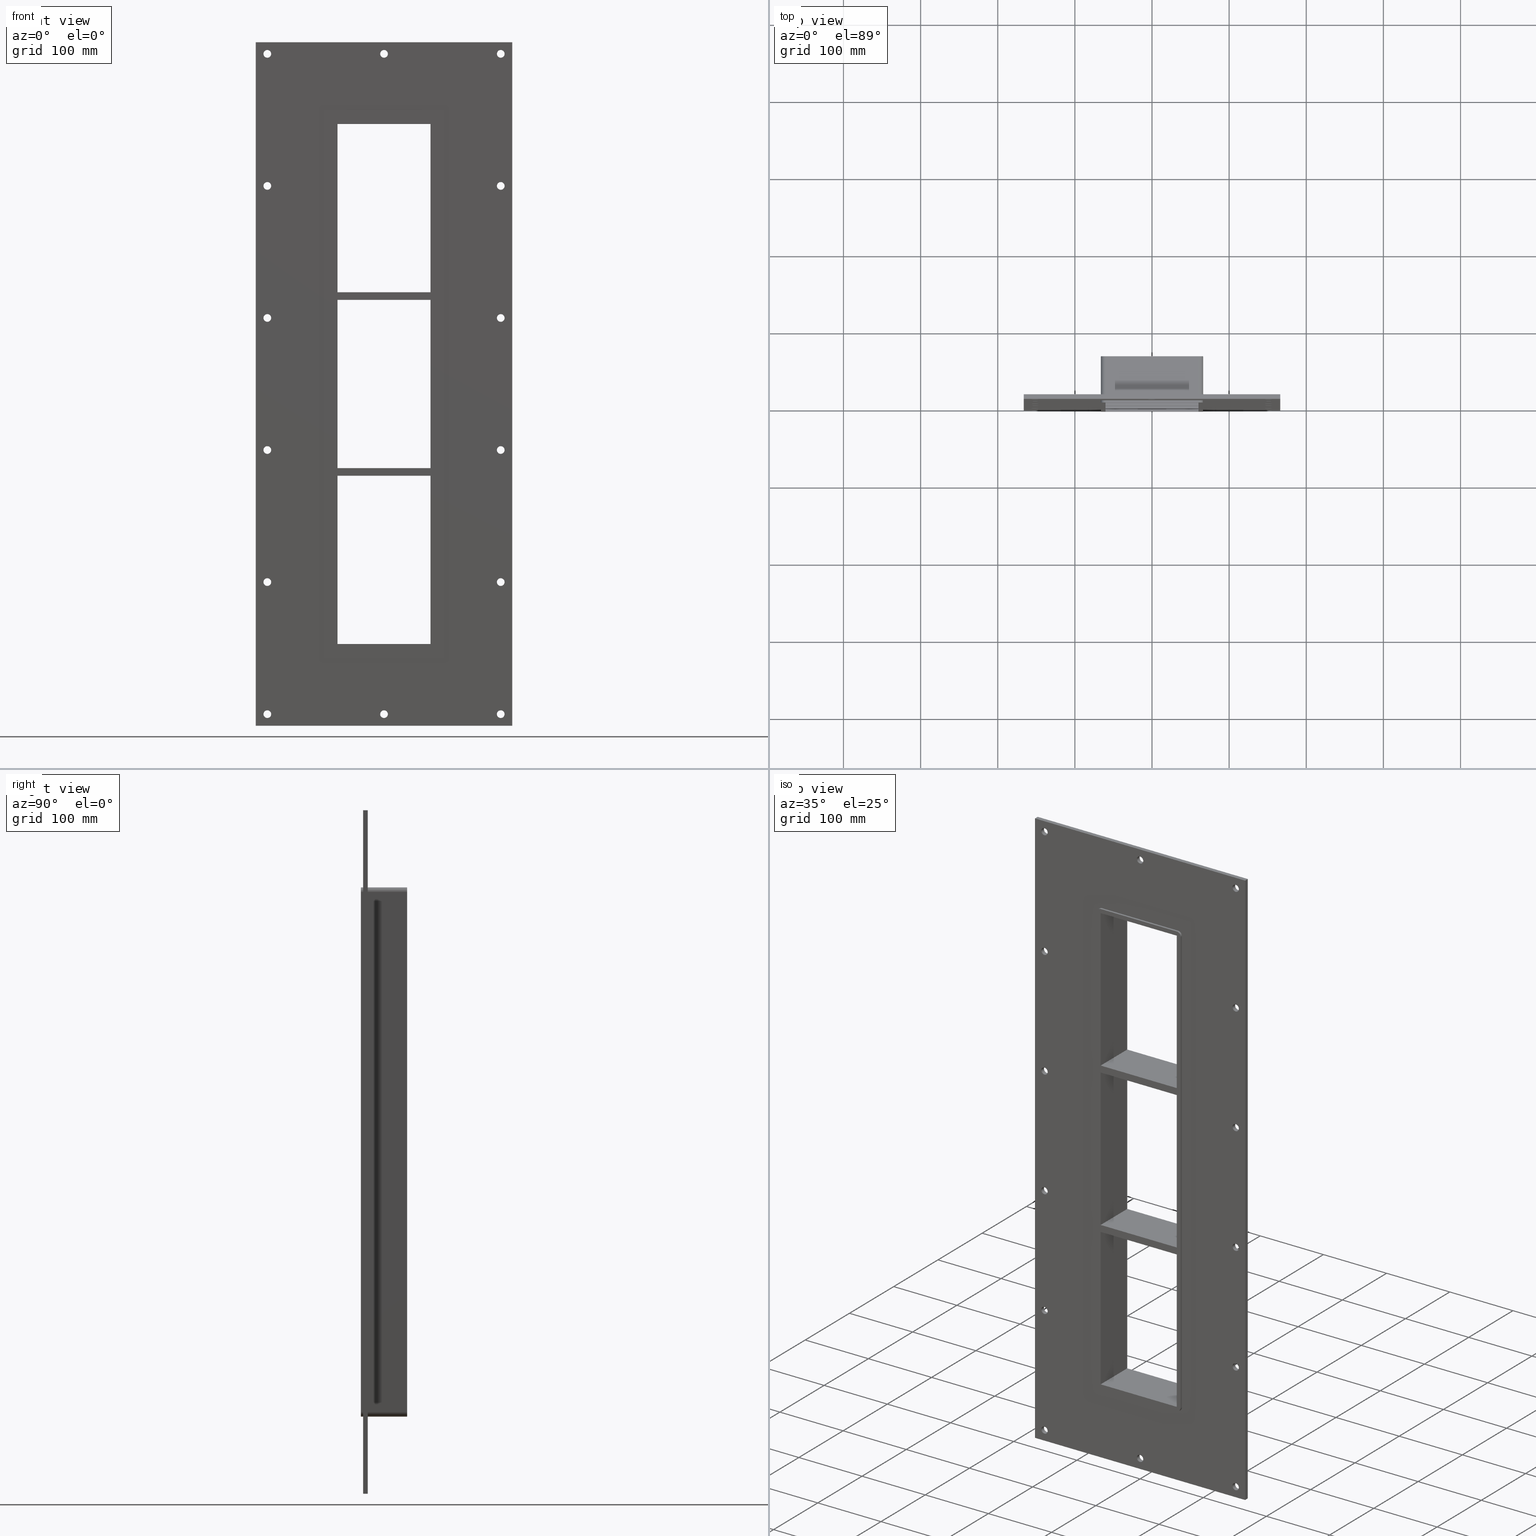
[diagram: canonical four-view strip — front | top / right | iso, engineering-drawing reading convention]
A machine part, canonical four-view strip (front | top / right | iso — engineering-drawing reading convention). The complete STEP part file that produces these views, byte-faithful:
ISO-10303-21;
HEADER;
/****************************************************************
 * Generated by software with PDElib inside                    *
 * PDElib Version v51a, created Wed 11/30/2011                  *
 * ITI Transcendata (http://www.transcendata.com/)              *
 ****************************************************************/
FILE_DESCRIPTION((''),'2;1');
FILE_NAME('C:\\RoxtecConfigurator\\CreatedFiles\\STEP\\GHFL1006+6+6X1.stp','2014-04-28T09:56:08',(''),(''),'Autodesk Inventor 2013','Autodesk Inventor 2013','');
FILE_SCHEMA(('AUTOMOTIVE_DESIGN { 1 0 10303 214 1 1 1 1 }'));
ENDSEC;
DATA;
#5=APPLICATION_CONTEXT('automotive design');
#6=APPLICATION_PROTOCOL_DEFINITION('International Standard','automotive_design',2001,#5);
#7=PRODUCT_CONTEXT('',#5,'mechanical');
#8=PRODUCT('GH FL100_ISO','GH FL100_ISO',$,(#7));
#9=PRODUCT_RELATED_PRODUCT_CATEGORY('part',$,(#8));
#10=PRODUCT_DEFINITION_FORMATION('',$,#8);
#11=PRODUCT_DEFINITION_CONTEXT('part definition',#5,'design');
#12=PRODUCT_DEFINITION('',$,#10,#11);
#18=(NAMED_UNIT(*)PLANE_ANGLE_UNIT()SI_UNIT($,.RADIAN.));
#19=DIMENSIONAL_EXPONENTS(0.0,0.0,0.0,0.0,0.0,0.0,0.0);
#20=PLANE_ANGLE_MEASURE_WITH_UNIT(PLANE_ANGLE_MEASURE(0.0174532925),#18);
#24=(CONVERSION_BASED_UNIT('DEGREE',#20)NAMED_UNIT(#19)PLANE_ANGLE_UNIT());
#28=(NAMED_UNIT(*)SI_UNIT($,.STERADIAN.)SOLID_ANGLE_UNIT());
#32=(LENGTH_UNIT()NAMED_UNIT(*)SI_UNIT(.MILLI.,.METRE.));
#34=UNCERTAINTY_MEASURE_WITH_UNIT(LENGTH_MEASURE(0.01),#32,'DISTANCE_ACCURACY_VALUE','');
#36=(GEOMETRIC_REPRESENTATION_CONTEXT(3)GLOBAL_UNCERTAINTY_ASSIGNED_CONTEXT((#34))GLOBAL_UNIT_ASSIGNED_CONTEXT((#24,#28,#32))REPRESENTATION_CONTEXT('None','None'));
#37=AXIS2_PLACEMENT_3D('',#38,#39,#40);
#38=CARTESIAN_POINT('',(0.0,0.0,0.0));
#39=DIRECTION('',(0.0,0.0,1.0));
#40=DIRECTION('',(1.0,0.0,0.0));
#41=SHAPE_REPRESENTATION('',(#37),#36);
#42=PRODUCT_DEFINITION_SHAPE('','',#12);
#43=SHAPE_DEFINITION_REPRESENTATION(#42,#41);
#49=(NAMED_UNIT(*)PLANE_ANGLE_UNIT()SI_UNIT($,.RADIAN.));
#50=DIMENSIONAL_EXPONENTS(0.0,0.0,0.0,0.0,0.0,0.0,0.0);
#51=PLANE_ANGLE_MEASURE_WITH_UNIT(PLANE_ANGLE_MEASURE(0.0174532925),#49);
#55=(CONVERSION_BASED_UNIT('DEGREE',#51)NAMED_UNIT(#50)PLANE_ANGLE_UNIT());
#59=(NAMED_UNIT(*)SI_UNIT($,.STERADIAN.)SOLID_ANGLE_UNIT());
#63=(LENGTH_UNIT()NAMED_UNIT(*)SI_UNIT(.MILLI.,.METRE.));
#65=UNCERTAINTY_MEASURE_WITH_UNIT(LENGTH_MEASURE(0.000001),#63,'DISTANCE_ACCURACY_VALUE','');
#67=(GEOMETRIC_REPRESENTATION_CONTEXT(3)GLOBAL_UNCERTAINTY_ASSIGNED_CONTEXT((#65))GLOBAL_UNIT_ASSIGNED_CONTEXT((#55,#59,#63))REPRESENTATION_CONTEXT('','3D'));
#68=CARTESIAN_POINT('',(-151.25000000000006,948.23638930384857,-428.0));
#69=DIRECTION('',(0.0,-1.0,0.0));
#70=DIRECTION('',(1.0,0.0,0.0));
#71=AXIS2_PLACEMENT_3D('',#68,#69,#70);
#72=CYLINDRICAL_SURFACE('',#71,5.0);
#73=CARTESIAN_POINT('',(-156.25000000000006,5.999999999999943,-428.0));
#74=VERTEX_POINT('',#73);
#75=CARTESIAN_POINT('',(-151.25000000000006,5.999999999999943,-428.0));
#76=DIRECTION('',(0.0,-1.0,0.0));
#77=DIRECTION('',(1.0,0.0,0.0));
#78=AXIS2_PLACEMENT_3D('',#75,#76,#77);
#79=CIRCLE('',#78,5.0);
#80=EDGE_CURVE('',#74,#74,#79,.T.);
#81=ORIENTED_EDGE('',*,*,#80,.F.);
#82=EDGE_LOOP('',(#81));
#83=FACE_OUTER_BOUND('',#82,.T.);
#84=CARTESIAN_POINT('',(-146.25000000000006,0.0,-428.0));
#85=VERTEX_POINT('',#84);
#86=CARTESIAN_POINT('',(-151.25000000000006,0.0,-428.0));
#87=DIRECTION('',(0.0,1.0,0.0));
#88=DIRECTION('',(1.0,0.0,0.0));
#89=AXIS2_PLACEMENT_3D('',#86,#87,#88);
#90=CIRCLE('',#89,5.0);
#91=EDGE_CURVE('',#85,#85,#90,.T.);
#92=ORIENTED_EDGE('',*,*,#91,.F.);
#93=EDGE_LOOP('',(#92));
#94=FACE_BOUND('',#93,.T.);
#95=ADVANCED_FACE('',(#83,#94),#72,.F.);
#96=CARTESIAN_POINT('',(151.34999999999997,948.23638930384857,-256.7999999999999));
#97=DIRECTION('',(0.0,-1.0,0.0));
#98=DIRECTION('',(1.0,0.0,0.0));
#99=AXIS2_PLACEMENT_3D('',#96,#97,#98);
#100=CYLINDRICAL_SURFACE('',#99,5.0);
#101=CARTESIAN_POINT('',(146.34999999999997,5.999999999999943,-256.7999999999999));
#102=VERTEX_POINT('',#101);
#103=CARTESIAN_POINT('',(151.34999999999997,5.999999999999943,-256.7999999999999));
#104=DIRECTION('',(0.0,-1.0,0.0));
#105=DIRECTION('',(1.0,0.0,0.0));
#106=AXIS2_PLACEMENT_3D('',#103,#104,#105);
#107=CIRCLE('',#106,5.0);
#108=EDGE_CURVE('',#102,#102,#107,.T.);
#109=ORIENTED_EDGE('',*,*,#108,.F.);
#110=EDGE_LOOP('',(#109));
#111=FACE_OUTER_BOUND('',#110,.T.);
#112=CARTESIAN_POINT('',(156.34999999999997,0.0,-256.7999999999999));
#113=VERTEX_POINT('',#112);
#114=CARTESIAN_POINT('',(151.34999999999997,0.0,-256.7999999999999));
#115=DIRECTION('',(0.0,1.0,0.0));
#116=DIRECTION('',(1.0,0.0,0.0));
#117=AXIS2_PLACEMENT_3D('',#114,#115,#116);
#118=CIRCLE('',#117,5.0);
#119=EDGE_CURVE('',#113,#113,#118,.T.);
#120=ORIENTED_EDGE('',*,*,#119,.F.);
#121=EDGE_LOOP('',(#120));
#122=FACE_BOUND('',#121,.T.);
#123=ADVANCED_FACE('',(#111,#122),#100,.F.);
#124=CARTESIAN_POINT('',(-151.25000000000006,948.23638930384857,-256.7999999999999));
#125=DIRECTION('',(0.0,-1.0,0.0));
#126=DIRECTION('',(1.0,0.0,0.0));
#127=AXIS2_PLACEMENT_3D('',#124,#125,#126);
#128=CYLINDRICAL_SURFACE('',#127,5.0);
#129=CARTESIAN_POINT('',(-156.25000000000006,5.999999999999943,-256.7999999999999));
#130=VERTEX_POINT('',#129);
#131=CARTESIAN_POINT('',(-151.25000000000006,5.999999999999943,-256.7999999999999));
#132=DIRECTION('',(0.0,-1.0,0.0));
#133=DIRECTION('',(1.0,0.0,0.0));
#134=AXIS2_PLACEMENT_3D('',#131,#132,#133);
#135=CIRCLE('',#134,5.0);
#136=EDGE_CURVE('',#130,#130,#135,.T.);
#137=ORIENTED_EDGE('',*,*,#136,.F.);
#138=EDGE_LOOP('',(#137));
#139=FACE_OUTER_BOUND('',#138,.T.);
#140=CARTESIAN_POINT('',(-146.25000000000006,0.0,-256.7999999999999));
#141=VERTEX_POINT('',#140);
#142=CARTESIAN_POINT('',(-151.25000000000006,0.0,-256.7999999999999));
#143=DIRECTION('',(0.0,1.0,0.0));
#144=DIRECTION('',(1.0,0.0,0.0));
#145=AXIS2_PLACEMENT_3D('',#142,#143,#144);
#146=CIRCLE('',#145,5.0);
#147=EDGE_CURVE('',#141,#141,#146,.T.);
#148=ORIENTED_EDGE('',*,*,#147,.F.);
#149=EDGE_LOOP('',(#148));
#150=FACE_BOUND('',#149,.T.);
#151=ADVANCED_FACE('',(#139,#150),#128,.F.);
#152=CARTESIAN_POINT('',(151.34999999999997,948.23638930384857,-85.599999999999852));
#153=DIRECTION('',(0.0,-1.0,0.0));
#154=DIRECTION('',(1.0,0.0,0.0));
#155=AXIS2_PLACEMENT_3D('',#152,#153,#154);
#156=CYLINDRICAL_SURFACE('',#155,5.0);
#157=CARTESIAN_POINT('',(146.34999999999997,5.999999999999943,-85.599999999999852));
#158=VERTEX_POINT('',#157);
#159=CARTESIAN_POINT('',(151.34999999999997,5.999999999999943,-85.599999999999852));
#160=DIRECTION('',(0.0,-1.0,0.0));
#161=DIRECTION('',(1.0,0.0,0.0));
#162=AXIS2_PLACEMENT_3D('',#159,#160,#161);
#163=CIRCLE('',#162,5.0);
#164=EDGE_CURVE('',#158,#158,#163,.T.);
#165=ORIENTED_EDGE('',*,*,#164,.F.);
#166=EDGE_LOOP('',(#165));
#167=FACE_OUTER_BOUND('',#166,.T.);
#168=CARTESIAN_POINT('',(156.34999999999997,0.0,-85.599999999999852));
#169=VERTEX_POINT('',#168);
#170=CARTESIAN_POINT('',(151.34999999999997,0.0,-85.599999999999852));
#171=DIRECTION('',(0.0,1.0,0.0));
#172=DIRECTION('',(1.0,0.0,0.0));
#173=AXIS2_PLACEMENT_3D('',#170,#171,#172);
#174=CIRCLE('',#173,5.0);
#175=EDGE_CURVE('',#169,#169,#174,.T.);
#176=ORIENTED_EDGE('',*,*,#175,.F.);
#177=EDGE_LOOP('',(#176));
#178=FACE_BOUND('',#177,.T.);
#179=ADVANCED_FACE('',(#167,#178),#156,.F.);
#180=CARTESIAN_POINT('',(-151.25000000000006,948.23638930384857,-85.599999999999852));
#181=DIRECTION('',(0.0,-1.0,0.0));
#182=DIRECTION('',(1.0,0.0,0.0));
#183=AXIS2_PLACEMENT_3D('',#180,#181,#182);
#184=CYLINDRICAL_SURFACE('',#183,5.0);
#185=CARTESIAN_POINT('',(-156.25000000000006,5.999999999999943,-85.599999999999852));
#186=VERTEX_POINT('',#185);
#187=CARTESIAN_POINT('',(-151.25000000000006,5.999999999999943,-85.599999999999852));
#188=DIRECTION('',(0.0,-1.0,0.0));
#189=DIRECTION('',(1.0,0.0,0.0));
#190=AXIS2_PLACEMENT_3D('',#187,#188,#189);
#191=CIRCLE('',#190,5.0);
#192=EDGE_CURVE('',#186,#186,#191,.T.);
#193=ORIENTED_EDGE('',*,*,#192,.F.);
#194=EDGE_LOOP('',(#193));
#195=FACE_OUTER_BOUND('',#194,.T.);
#196=CARTESIAN_POINT('',(-146.25000000000006,0.0,-85.599999999999852));
#197=VERTEX_POINT('',#196);
#198=CARTESIAN_POINT('',(-151.25000000000006,0.0,-85.599999999999852));
#199=DIRECTION('',(0.0,1.0,0.0));
#200=DIRECTION('',(1.0,0.0,0.0));
#201=AXIS2_PLACEMENT_3D('',#198,#199,#200);
#202=CIRCLE('',#201,5.0);
#203=EDGE_CURVE('',#197,#197,#202,.T.);
#204=ORIENTED_EDGE('',*,*,#203,.F.);
#205=EDGE_LOOP('',(#204));
#206=FACE_BOUND('',#205,.T.);
#207=ADVANCED_FACE('',(#195,#206),#184,.F.);
#208=CARTESIAN_POINT('',(151.34999999999997,948.23638930384857,85.600000000000094));
#209=DIRECTION('',(0.0,-1.0,0.0));
#210=DIRECTION('',(1.0,0.0,0.0));
#211=AXIS2_PLACEMENT_3D('',#208,#209,#210);
#212=CYLINDRICAL_SURFACE('',#211,5.0);
#213=CARTESIAN_POINT('',(146.34999999999997,5.999999999999943,85.600000000000094));
#214=VERTEX_POINT('',#213);
#215=CARTESIAN_POINT('',(151.34999999999997,5.999999999999943,85.600000000000094));
#216=DIRECTION('',(0.0,-1.0,0.0));
#217=DIRECTION('',(1.0,0.0,0.0));
#218=AXIS2_PLACEMENT_3D('',#215,#216,#217);
#219=CIRCLE('',#218,5.0);
#220=EDGE_CURVE('',#214,#214,#219,.T.);
#221=ORIENTED_EDGE('',*,*,#220,.F.);
#222=EDGE_LOOP('',(#221));
#223=FACE_OUTER_BOUND('',#222,.T.);
#224=CARTESIAN_POINT('',(156.34999999999997,0.0,85.600000000000094));
#225=VERTEX_POINT('',#224);
#226=CARTESIAN_POINT('',(151.34999999999997,0.0,85.600000000000094));
#227=DIRECTION('',(0.0,1.0,0.0));
#228=DIRECTION('',(1.0,0.0,0.0));
#229=AXIS2_PLACEMENT_3D('',#226,#227,#228);
#230=CIRCLE('',#229,5.0);
#231=EDGE_CURVE('',#225,#225,#230,.T.);
#232=ORIENTED_EDGE('',*,*,#231,.F.);
#233=EDGE_LOOP('',(#232));
#234=FACE_BOUND('',#233,.T.);
#235=ADVANCED_FACE('',(#223,#234),#212,.F.);
#236=CARTESIAN_POINT('',(-151.25000000000006,948.23638930384857,85.600000000000094));
#237=DIRECTION('',(0.0,-1.0,0.0));
#238=DIRECTION('',(1.0,0.0,0.0));
#239=AXIS2_PLACEMENT_3D('',#236,#237,#238);
#240=CYLINDRICAL_SURFACE('',#239,5.0);
#241=CARTESIAN_POINT('',(-156.25000000000006,5.999999999999943,85.600000000000094));
#242=VERTEX_POINT('',#241);
#243=CARTESIAN_POINT('',(-151.25000000000006,5.999999999999943,85.600000000000094));
#244=DIRECTION('',(0.0,-1.0,0.0));
#245=DIRECTION('',(1.0,0.0,0.0));
#246=AXIS2_PLACEMENT_3D('',#243,#244,#245);
#247=CIRCLE('',#246,5.0);
#248=EDGE_CURVE('',#242,#242,#247,.T.);
#249=ORIENTED_EDGE('',*,*,#248,.F.);
#250=EDGE_LOOP('',(#249));
#251=FACE_OUTER_BOUND('',#250,.T.);
#252=CARTESIAN_POINT('',(-146.25000000000006,0.0,85.600000000000094));
#253=VERTEX_POINT('',#252);
#254=CARTESIAN_POINT('',(-151.25000000000006,0.0,85.600000000000094));
#255=DIRECTION('',(0.0,1.0,0.0));
#256=DIRECTION('',(1.0,0.0,0.0));
#257=AXIS2_PLACEMENT_3D('',#254,#255,#256);
#258=CIRCLE('',#257,5.0);
#259=EDGE_CURVE('',#253,#253,#258,.T.);
#260=ORIENTED_EDGE('',*,*,#259,.F.);
#261=EDGE_LOOP('',(#260));
#262=FACE_BOUND('',#261,.T.);
#263=ADVANCED_FACE('',(#251,#262),#240,.F.);
#264=CARTESIAN_POINT('',(151.34999999999997,948.23638930384857,256.80000000000013));
#265=DIRECTION('',(0.0,-1.0,0.0));
#266=DIRECTION('',(1.0,0.0,0.0));
#267=AXIS2_PLACEMENT_3D('',#264,#265,#266);
#268=CYLINDRICAL_SURFACE('',#267,5.0);
#269=CARTESIAN_POINT('',(146.34999999999997,5.999999999999943,256.80000000000013));
#270=VERTEX_POINT('',#269);
#271=CARTESIAN_POINT('',(151.34999999999997,5.999999999999943,256.80000000000013));
#272=DIRECTION('',(0.0,-1.0,0.0));
#273=DIRECTION('',(1.0,0.0,0.0));
#274=AXIS2_PLACEMENT_3D('',#271,#272,#273);
#275=CIRCLE('',#274,5.0);
#276=EDGE_CURVE('',#270,#270,#275,.T.);
#277=ORIENTED_EDGE('',*,*,#276,.F.);
#278=EDGE_LOOP('',(#277));
#279=FACE_OUTER_BOUND('',#278,.T.);
#280=CARTESIAN_POINT('',(156.34999999999997,0.0,256.80000000000013));
#281=VERTEX_POINT('',#280);
#282=CARTESIAN_POINT('',(151.34999999999997,0.0,256.80000000000013));
#283=DIRECTION('',(0.0,1.0,0.0));
#284=DIRECTION('',(1.0,0.0,0.0));
#285=AXIS2_PLACEMENT_3D('',#282,#283,#284);
#286=CIRCLE('',#285,5.0);
#287=EDGE_CURVE('',#281,#281,#286,.T.);
#288=ORIENTED_EDGE('',*,*,#287,.F.);
#289=EDGE_LOOP('',(#288));
#290=FACE_BOUND('',#289,.T.);
#291=ADVANCED_FACE('',(#279,#290),#268,.F.);
#292=CARTESIAN_POINT('',(-151.25000000000006,948.23638930384857,256.80000000000013));
#293=DIRECTION('',(0.0,-1.0,0.0));
#294=DIRECTION('',(1.0,0.0,0.0));
#295=AXIS2_PLACEMENT_3D('',#292,#293,#294);
#296=CYLINDRICAL_SURFACE('',#295,5.0);
#297=CARTESIAN_POINT('',(-156.25000000000006,5.999999999999943,256.80000000000013));
#298=VERTEX_POINT('',#297);
#299=CARTESIAN_POINT('',(-151.25000000000006,5.999999999999943,256.80000000000013));
#300=DIRECTION('',(0.0,-1.0,0.0));
#301=DIRECTION('',(1.0,0.0,0.0));
#302=AXIS2_PLACEMENT_3D('',#299,#300,#301);
#303=CIRCLE('',#302,5.0);
#304=EDGE_CURVE('',#298,#298,#303,.T.);
#305=ORIENTED_EDGE('',*,*,#304,.F.);
#306=EDGE_LOOP('',(#305));
#307=FACE_OUTER_BOUND('',#306,.T.);
#308=CARTESIAN_POINT('',(-146.25000000000006,0.0,256.80000000000013));
#309=VERTEX_POINT('',#308);
#310=CARTESIAN_POINT('',(-151.25000000000006,0.0,256.80000000000013));
#311=DIRECTION('',(0.0,1.0,0.0));
#312=DIRECTION('',(1.0,0.0,0.0));
#313=AXIS2_PLACEMENT_3D('',#310,#311,#312);
#314=CIRCLE('',#313,5.0);
#315=EDGE_CURVE('',#309,#309,#314,.T.);
#316=ORIENTED_EDGE('',*,*,#315,.F.);
#317=EDGE_LOOP('',(#316));
#318=FACE_BOUND('',#317,.T.);
#319=ADVANCED_FACE('',(#307,#318),#296,.F.);
#320=CARTESIAN_POINT('',(0.049999999999955,948.23638930384857,428.00000000000011));
#321=DIRECTION('',(0.0,-1.0,0.0));
#322=DIRECTION('',(1.0,0.0,0.0));
#323=AXIS2_PLACEMENT_3D('',#320,#321,#322);
#324=CYLINDRICAL_SURFACE('',#323,5.0);
#325=CARTESIAN_POINT('',(-4.950000000000046,5.999999999999943,428.00000000000011));
#326=VERTEX_POINT('',#325);
#327=CARTESIAN_POINT('',(0.049999999999955,5.999999999999943,428.00000000000011));
#328=DIRECTION('',(0.0,-1.0,0.0));
#329=DIRECTION('',(1.0,0.0,0.0));
#330=AXIS2_PLACEMENT_3D('',#327,#328,#329);
#331=CIRCLE('',#330,5.0);
#332=EDGE_CURVE('',#326,#326,#331,.T.);
#333=ORIENTED_EDGE('',*,*,#332,.F.);
#334=EDGE_LOOP('',(#333));
#335=FACE_OUTER_BOUND('',#334,.T.);
#336=CARTESIAN_POINT('',(5.049999999999955,0.0,428.00000000000011));
#337=VERTEX_POINT('',#336);
#338=CARTESIAN_POINT('',(0.049999999999955,0.0,428.00000000000011));
#339=DIRECTION('',(0.0,1.0,0.0));
#340=DIRECTION('',(1.0,0.0,0.0));
#341=AXIS2_PLACEMENT_3D('',#338,#339,#340);
#342=CIRCLE('',#341,5.0);
#343=EDGE_CURVE('',#337,#337,#342,.T.);
#344=ORIENTED_EDGE('',*,*,#343,.F.);
#345=EDGE_LOOP('',(#344));
#346=FACE_BOUND('',#345,.T.);
#347=ADVANCED_FACE('',(#335,#346),#324,.F.);
#348=CARTESIAN_POINT('',(0.049999999999955,948.23638930384857,-428.0));
#349=DIRECTION('',(0.0,-1.0,0.0));
#350=DIRECTION('',(1.0,0.0,0.0));
#351=AXIS2_PLACEMENT_3D('',#348,#349,#350);
#352=CYLINDRICAL_SURFACE('',#351,5.0);
#353=CARTESIAN_POINT('',(-4.950000000000046,5.999999999999943,-428.0));
#354=VERTEX_POINT('',#353);
#355=CARTESIAN_POINT('',(0.049999999999955,5.999999999999943,-428.0));
#356=DIRECTION('',(0.0,-1.0,0.0));
#357=DIRECTION('',(1.0,0.0,0.0));
#358=AXIS2_PLACEMENT_3D('',#355,#356,#357);
#359=CIRCLE('',#358,5.0);
#360=EDGE_CURVE('',#354,#354,#359,.T.);
#361=ORIENTED_EDGE('',*,*,#360,.F.);
#362=EDGE_LOOP('',(#361));
#363=FACE_OUTER_BOUND('',#362,.T.);
#364=CARTESIAN_POINT('',(5.049999999999955,0.0,-428.0));
#365=VERTEX_POINT('',#364);
#366=CARTESIAN_POINT('',(0.049999999999955,0.0,-428.0));
#367=DIRECTION('',(0.0,1.0,0.0));
#368=DIRECTION('',(1.0,0.0,0.0));
#369=AXIS2_PLACEMENT_3D('',#366,#367,#368);
#370=CIRCLE('',#369,5.0);
#371=EDGE_CURVE('',#365,#365,#370,.T.);
#372=ORIENTED_EDGE('',*,*,#371,.F.);
#373=EDGE_LOOP('',(#372));
#374=FACE_BOUND('',#373,.T.);
#375=ADVANCED_FACE('',(#363,#374),#352,.F.);
#376=CARTESIAN_POINT('',(151.34999999999997,948.23638930384857,-428.0));
#377=DIRECTION('',(0.0,-1.0,0.0));
#378=DIRECTION('',(1.0,0.0,0.0));
#379=AXIS2_PLACEMENT_3D('',#376,#377,#378);
#380=CYLINDRICAL_SURFACE('',#379,5.0);
#381=CARTESIAN_POINT('',(146.34999999999997,5.999999999999943,-428.0));
#382=VERTEX_POINT('',#381);
#383=CARTESIAN_POINT('',(151.34999999999997,5.999999999999943,-428.0));
#384=DIRECTION('',(0.0,-1.0,0.0));
#385=DIRECTION('',(1.0,0.0,0.0));
#386=AXIS2_PLACEMENT_3D('',#383,#384,#385);
#387=CIRCLE('',#386,5.0);
#388=EDGE_CURVE('',#382,#382,#387,.T.);
#389=ORIENTED_EDGE('',*,*,#388,.F.);
#390=EDGE_LOOP('',(#389));
#391=FACE_OUTER_BOUND('',#390,.T.);
#392=CARTESIAN_POINT('',(156.34999999999997,0.0,-428.0));
#393=VERTEX_POINT('',#392);
#394=CARTESIAN_POINT('',(151.34999999999997,0.0,-428.0));
#395=DIRECTION('',(0.0,1.0,0.0));
#396=DIRECTION('',(1.0,0.0,0.0));
#397=AXIS2_PLACEMENT_3D('',#394,#395,#396);
#398=CIRCLE('',#397,5.0);
#399=EDGE_CURVE('',#393,#393,#398,.T.);
#400=ORIENTED_EDGE('',*,*,#399,.F.);
#401=EDGE_LOOP('',(#400));
#402=FACE_BOUND('',#401,.T.);
#403=ADVANCED_FACE('',(#391,#402),#380,.F.);
#404=CARTESIAN_POINT('',(-151.25000000000006,948.23638930384857,428.00000000000011));
#405=DIRECTION('',(0.0,-1.0,0.0));
#406=DIRECTION('',(1.0,0.0,0.0));
#407=AXIS2_PLACEMENT_3D('',#404,#405,#406);
#408=CYLINDRICAL_SURFACE('',#407,5.0);
#409=CARTESIAN_POINT('',(-156.25000000000006,5.999999999999943,428.00000000000011));
#410=VERTEX_POINT('',#409);
#411=CARTESIAN_POINT('',(-151.25000000000006,5.999999999999943,428.00000000000011));
#412=DIRECTION('',(0.0,-1.0,0.0));
#413=DIRECTION('',(1.0,0.0,0.0));
#414=AXIS2_PLACEMENT_3D('',#411,#412,#413);
#415=CIRCLE('',#414,5.0);
#416=EDGE_CURVE('',#410,#410,#415,.T.);
#417=ORIENTED_EDGE('',*,*,#416,.F.);
#418=EDGE_LOOP('',(#417));
#419=FACE_OUTER_BOUND('',#418,.T.);
#420=CARTESIAN_POINT('',(-146.25000000000006,0.0,428.00000000000011));
#421=VERTEX_POINT('',#420);
#422=CARTESIAN_POINT('',(-151.25000000000006,0.0,428.00000000000011));
#423=DIRECTION('',(0.0,1.0,0.0));
#424=DIRECTION('',(1.0,0.0,0.0));
#425=AXIS2_PLACEMENT_3D('',#422,#423,#424);
#426=CIRCLE('',#425,5.0);
#427=EDGE_CURVE('',#421,#421,#426,.T.);
#428=ORIENTED_EDGE('',*,*,#427,.F.);
#429=EDGE_LOOP('',(#428));
#430=FACE_BOUND('',#429,.T.);
#431=ADVANCED_FACE('',(#419,#430),#408,.F.);
#432=CARTESIAN_POINT('',(151.34999999999997,948.23638930384857,428.00000000000011));
#433=DIRECTION('',(0.0,-1.0,0.0));
#434=DIRECTION('',(1.0,0.0,0.0));
#435=AXIS2_PLACEMENT_3D('',#432,#433,#434);
#436=CYLINDRICAL_SURFACE('',#435,5.0);
#437=CARTESIAN_POINT('',(146.34999999999997,5.999999999999943,428.00000000000011));
#438=VERTEX_POINT('',#437);
#439=CARTESIAN_POINT('',(151.34999999999997,5.999999999999943,428.00000000000011));
#440=DIRECTION('',(0.0,-1.0,0.0));
#441=DIRECTION('',(1.0,0.0,0.0));
#442=AXIS2_PLACEMENT_3D('',#439,#440,#441);
#443=CIRCLE('',#442,5.0);
#444=EDGE_CURVE('',#438,#438,#443,.T.);
#445=ORIENTED_EDGE('',*,*,#444,.F.);
#446=EDGE_LOOP('',(#445));
#447=FACE_OUTER_BOUND('',#446,.T.);
#448=CARTESIAN_POINT('',(156.34999999999997,0.0,428.00000000000011));
#449=VERTEX_POINT('',#448);
#450=CARTESIAN_POINT('',(151.34999999999997,0.0,428.00000000000011));
#451=DIRECTION('',(0.0,1.0,0.0));
#452=DIRECTION('',(1.0,0.0,0.0));
#453=AXIS2_PLACEMENT_3D('',#450,#451,#452);
#454=CIRCLE('',#453,5.0);
#455=EDGE_CURVE('',#449,#449,#454,.T.);
#456=ORIENTED_EDGE('',*,*,#455,.F.);
#457=EDGE_LOOP('',(#456));
#458=FACE_BOUND('',#457,.T.);
#459=ADVANCED_FACE('',(#447,#458),#436,.F.);
#460=CARTESIAN_POINT('',(60.249999999996362,-3.0,108.99999999999069));
#461=DIRECTION('',(0.0,0.0,-1.0));
#462=DIRECTION('',(-1.0,0.0,0.0));
#463=AXIS2_PLACEMENT_3D('',#460,#461,#462);
#464=PLANE('',#463);
#465=CARTESIAN_POINT('',(60.249999999996362,-3.0,108.99999999999069));
#466=VERTEX_POINT('',#465);
#467=CARTESIAN_POINT('',(-60.249999999999694,-3.0,108.99999999999056));
#468=VERTEX_POINT('',#467);
#469=CARTESIAN_POINT('',(60.249999999996362,-3.0,108.99999999999069));
#470=DIRECTION('',(-1.0,0.0,0.0));
#471=VECTOR('',#470,120.49999999999606);
#472=LINE('',#469,#471);
#473=EDGE_CURVE('',#466,#468,#472,.T.);
#474=ORIENTED_EDGE('',*,*,#473,.T.);
#475=CARTESIAN_POINT('',(-60.249999999999694,57.0,108.99999999999056));
#476=VERTEX_POINT('',#475);
#477=CARTESIAN_POINT('',(-60.25,57.000000000000007,108.99999999999055));
#478=DIRECTION('',(0.0,-1.0,0.0));
#479=VECTOR('',#478,60.000000000000007);
#480=LINE('',#477,#479);
#481=EDGE_CURVE('',#476,#468,#480,.T.);
#482=ORIENTED_EDGE('',*,*,#481,.F.);
#483=CARTESIAN_POINT('',(60.249999999996369,57.0,108.99999999999069));
#484=VERTEX_POINT('',#483);
#485=CARTESIAN_POINT('',(60.249999999996362,57.0,108.99999999999069));
#486=DIRECTION('',(-1.0,0.0,0.0));
#487=VECTOR('',#486,120.49999999999606);
#488=LINE('',#485,#487);
#489=EDGE_CURVE('',#484,#476,#488,.T.);
#490=ORIENTED_EDGE('',*,*,#489,.F.);
#491=CARTESIAN_POINT('',(60.25,-3.0,108.99999999999068));
#492=DIRECTION('',(0.0,1.0,0.0));
#493=VECTOR('',#492,60.000000000000007);
#494=LINE('',#491,#493);
#495=EDGE_CURVE('',#466,#484,#494,.T.);
#496=ORIENTED_EDGE('',*,*,#495,.F.);
#497=EDGE_LOOP('',(#474,#482,#490,#496));
#498=FACE_OUTER_BOUND('',#497,.T.);
#499=ADVANCED_FACE('',(#498),#464,.T.);
#500=CARTESIAN_POINT('',(-60.249999999999694,-3.0,118.99999999999994));
#501=DIRECTION('',(0.0,0.0,1.0));
#502=DIRECTION('',(1.0,0.0,0.0));
#503=AXIS2_PLACEMENT_3D('',#500,#501,#502);
#504=PLANE('',#503);
#505=CARTESIAN_POINT('',(-60.249999999999694,-3.0,118.99999999999994));
#506=VERTEX_POINT('',#505);
#507=CARTESIAN_POINT('',(60.249999999999915,-3.0,118.99999999999994));
#508=VERTEX_POINT('',#507);
#509=CARTESIAN_POINT('',(-60.249999999999694,-3.0,118.99999999999994));
#510=DIRECTION('',(1.0,0.0,0.0));
#511=VECTOR('',#510,120.49999999999962);
#512=LINE('',#509,#511);
#513=EDGE_CURVE('',#506,#508,#512,.T.);
#514=ORIENTED_EDGE('',*,*,#513,.T.);
#515=CARTESIAN_POINT('',(60.249999999999922,57.0,118.99999999999994));
#516=VERTEX_POINT('',#515);
#517=CARTESIAN_POINT('',(60.25,57.000000000000007,118.99999999999993));
#518=DIRECTION('',(0.0,-1.0,0.0));
#519=VECTOR('',#518,60.000000000000007);
#520=LINE('',#517,#519);
#521=EDGE_CURVE('',#516,#508,#520,.T.);
#522=ORIENTED_EDGE('',*,*,#521,.F.);
#523=CARTESIAN_POINT('',(-60.249999999999694,57.0,118.99999999999994));
#524=VERTEX_POINT('',#523);
#525=CARTESIAN_POINT('',(-60.249999999999694,57.0,118.99999999999994));
#526=DIRECTION('',(1.0,0.0,0.0));
#527=VECTOR('',#526,120.49999999999962);
#528=LINE('',#525,#527);
#529=EDGE_CURVE('',#524,#516,#528,.T.);
#530=ORIENTED_EDGE('',*,*,#529,.F.);
#531=CARTESIAN_POINT('',(-60.25,-3.0,118.99999999999993));
#532=DIRECTION('',(0.0,1.0,0.0));
#533=VECTOR('',#532,60.000000000000007);
#534=LINE('',#531,#533);
#535=EDGE_CURVE('',#506,#524,#534,.T.);
#536=ORIENTED_EDGE('',*,*,#535,.F.);
#537=EDGE_LOOP('',(#514,#522,#530,#536));
#538=FACE_OUTER_BOUND('',#537,.T.);
#539=ADVANCED_FACE('',(#538),#504,.T.);
#540=CARTESIAN_POINT('',(-60.25,0.0,-337.0));
#541=DIRECTION('',(-1.0,0.0,0.0));
#542=DIRECTION('',(0.0,0.0,1.0));
#543=AXIS2_PLACEMENT_3D('',#540,#541,#542);
#544=PLANE('',#543);
#545=ORIENTED_EDGE('',*,*,#535,.T.);
#546=CARTESIAN_POINT('',(-60.25,57.0,337.0));
#547=VERTEX_POINT('',#546);
#548=CARTESIAN_POINT('',(-60.25,57.0,337.0));
#549=DIRECTION('',(0.0,0.0,-1.0));
#550=VECTOR('',#549,218.00000000000003);
#551=LINE('',#548,#550);
#552=EDGE_CURVE('',#547,#524,#551,.T.);
#553=ORIENTED_EDGE('',*,*,#552,.F.);
#554=CARTESIAN_POINT('',(-60.25,-3.0,337.0));
#555=VERTEX_POINT('',#554);
#556=CARTESIAN_POINT('',(-60.25,-3.0,337.0));
#557=DIRECTION('',(0.0,1.0,0.0));
#558=VECTOR('',#557,60.0);
#559=LINE('',#556,#558);
#560=EDGE_CURVE('',#555,#547,#559,.T.);
#561=ORIENTED_EDGE('',*,*,#560,.F.);
#562=CARTESIAN_POINT('',(-60.25,-3.0,118.99999999999997));
#563=DIRECTION('',(0.0,0.0,1.0));
#564=VECTOR('',#563,218.00000000000003);
#565=LINE('',#562,#564);
#566=EDGE_CURVE('',#506,#555,#565,.T.);
#567=ORIENTED_EDGE('',*,*,#566,.F.);
#568=EDGE_LOOP('',(#545,#553,#561,#567));
#569=FACE_OUTER_BOUND('',#568,.T.);
#570=ADVANCED_FACE('',(#569),#544,.F.);
#571=CARTESIAN_POINT('',(60.25,0.0,337.0));
#572=DIRECTION('',(1.0,0.0,0.0));
#573=DIRECTION('',(0.0,0.0,-1.0));
#574=AXIS2_PLACEMENT_3D('',#571,#572,#573);
#575=PLANE('',#574);
#576=ORIENTED_EDGE('',*,*,#495,.T.);
#577=CARTESIAN_POINT('',(60.249999999999922,57.0,-109.00000000000006));
#578=VERTEX_POINT('',#577);
#579=CARTESIAN_POINT('',(60.25,57.0,-109.00000000000006));
#580=DIRECTION('',(0.0,0.0,1.0));
#581=VECTOR('',#580,217.99999999999076);
#582=LINE('',#579,#581);
#583=EDGE_CURVE('',#578,#484,#582,.T.);
#584=ORIENTED_EDGE('',*,*,#583,.F.);
#585=CARTESIAN_POINT('',(60.249999999999915,-3.0,-109.00000000000006));
#586=VERTEX_POINT('',#585);
#587=CARTESIAN_POINT('',(60.25,57.000000000000007,-109.00000000000006));
#588=DIRECTION('',(0.0,-1.0,0.0));
#589=VECTOR('',#588,60.000000000000007);
#590=LINE('',#587,#589);
#591=EDGE_CURVE('',#578,#586,#590,.T.);
#592=ORIENTED_EDGE('',*,*,#591,.T.);
#593=CARTESIAN_POINT('',(60.25,-3.0,108.99999999999071));
#594=DIRECTION('',(0.0,0.0,-1.0));
#595=VECTOR('',#594,217.99999999999076);
#596=LINE('',#593,#595);
#597=EDGE_CURVE('',#466,#586,#596,.T.);
#598=ORIENTED_EDGE('',*,*,#597,.F.);
#599=EDGE_LOOP('',(#576,#584,#592,#598));
#600=FACE_OUTER_BOUND('',#599,.T.);
#601=ADVANCED_FACE('',(#600),#575,.F.);
#602=CARTESIAN_POINT('',(60.25,0.0,337.0));
#603=DIRECTION('',(1.0,0.0,0.0));
#604=DIRECTION('',(0.0,0.0,-1.0));
#605=AXIS2_PLACEMENT_3D('',#602,#603,#604);
#606=PLANE('',#605);
#607=ORIENTED_EDGE('',*,*,#521,.T.);
#608=CARTESIAN_POINT('',(60.25,-3.0,337.0));
#609=VERTEX_POINT('',#608);
#610=CARTESIAN_POINT('',(60.25,-3.0,337.0));
#611=DIRECTION('',(0.0,0.0,-1.0));
#612=VECTOR('',#611,218.00000000000006);
#613=LINE('',#610,#612);
#614=EDGE_CURVE('',#609,#508,#613,.T.);
#615=ORIENTED_EDGE('',*,*,#614,.F.);
#616=CARTESIAN_POINT('',(60.25,57.0,337.0));
#617=VERTEX_POINT('',#616);
#618=CARTESIAN_POINT('',(60.25,-3.0,337.0));
#619=DIRECTION('',(0.0,1.0,0.0));
#620=VECTOR('',#619,60.0);
#621=LINE('',#618,#620);
#622=EDGE_CURVE('',#609,#617,#621,.T.);
#623=ORIENTED_EDGE('',*,*,#622,.T.);
#624=CARTESIAN_POINT('',(60.25,57.0,118.99999999999996));
#625=DIRECTION('',(0.0,0.0,1.0));
#626=VECTOR('',#625,218.00000000000006);
#627=LINE('',#624,#626);
#628=EDGE_CURVE('',#516,#617,#627,.T.);
#629=ORIENTED_EDGE('',*,*,#628,.F.);
#630=EDGE_LOOP('',(#607,#615,#623,#629));
#631=FACE_OUTER_BOUND('',#630,.T.);
#632=ADVANCED_FACE('',(#631),#606,.F.);
#633=CARTESIAN_POINT('',(60.249999999996362,-3.0,-119.00000000000931));
#634=DIRECTION('',(0.0,0.0,-1.0));
#635=DIRECTION('',(-1.0,0.0,0.0));
#636=AXIS2_PLACEMENT_3D('',#633,#634,#635);
#637=PLANE('',#636);
#638=CARTESIAN_POINT('',(60.249999999996362,-3.0,-119.00000000000931));
#639=VERTEX_POINT('',#638);
#640=CARTESIAN_POINT('',(-60.249999999999694,-3.0,-119.00000000000944));
#641=VERTEX_POINT('',#640);
#642=CARTESIAN_POINT('',(60.249999999996362,-3.0,-119.00000000000931));
#643=DIRECTION('',(-1.0,0.0,0.0));
#644=VECTOR('',#643,120.49999999999606);
#645=LINE('',#642,#644);
#646=EDGE_CURVE('',#639,#641,#645,.T.);
#647=ORIENTED_EDGE('',*,*,#646,.T.);
#648=CARTESIAN_POINT('',(-60.249999999999694,57.0,-119.00000000000944));
#649=VERTEX_POINT('',#648);
#650=CARTESIAN_POINT('',(-60.25,57.000000000000007,-119.00000000000944));
#651=DIRECTION('',(0.0,-1.0,0.0));
#652=VECTOR('',#651,60.000000000000007);
#653=LINE('',#650,#652);
#654=EDGE_CURVE('',#649,#641,#653,.T.);
#655=ORIENTED_EDGE('',*,*,#654,.F.);
#656=CARTESIAN_POINT('',(60.249999999996369,57.0,-119.00000000000931));
#657=VERTEX_POINT('',#656);
#658=CARTESIAN_POINT('',(60.249999999996362,57.0,-119.00000000000931));
#659=DIRECTION('',(-1.0,0.0,0.0));
#660=VECTOR('',#659,120.49999999999606);
#661=LINE('',#658,#660);
#662=EDGE_CURVE('',#657,#649,#661,.T.);
#663=ORIENTED_EDGE('',*,*,#662,.F.);
#664=CARTESIAN_POINT('',(60.25,-3.0,-119.00000000000929));
#665=DIRECTION('',(0.0,1.0,0.0));
#666=VECTOR('',#665,60.000000000000007);
#667=LINE('',#664,#666);
#668=EDGE_CURVE('',#639,#657,#667,.T.);
#669=ORIENTED_EDGE('',*,*,#668,.F.);
#670=EDGE_LOOP('',(#647,#655,#663,#669));
#671=FACE_OUTER_BOUND('',#670,.T.);
#672=ADVANCED_FACE('',(#671),#637,.T.);
#673=CARTESIAN_POINT('',(-60.249999999999694,-3.0,-109.00000000000006));
#674=DIRECTION('',(0.0,0.0,1.0));
#675=DIRECTION('',(1.0,0.0,0.0));
#676=AXIS2_PLACEMENT_3D('',#673,#674,#675);
#677=PLANE('',#676);
#678=CARTESIAN_POINT('',(-60.249999999999694,-3.0,-109.00000000000006));
#679=VERTEX_POINT('',#678);
#680=CARTESIAN_POINT('',(-60.249999999999694,-3.0,-109.00000000000006));
#681=DIRECTION('',(1.0,0.0,0.0));
#682=VECTOR('',#681,120.49999999999962);
#683=LINE('',#680,#682);
#684=EDGE_CURVE('',#679,#586,#683,.T.);
#685=ORIENTED_EDGE('',*,*,#684,.T.);
#686=ORIENTED_EDGE('',*,*,#591,.F.);
#687=CARTESIAN_POINT('',(-60.249999999999694,57.0,-109.00000000000006));
#688=VERTEX_POINT('',#687);
#689=CARTESIAN_POINT('',(-60.249999999999694,57.0,-109.00000000000006));
#690=DIRECTION('',(1.0,0.0,0.0));
#691=VECTOR('',#690,120.49999999999962);
#692=LINE('',#689,#691);
#693=EDGE_CURVE('',#688,#578,#692,.T.);
#694=ORIENTED_EDGE('',*,*,#693,.F.);
#695=CARTESIAN_POINT('',(-60.25,-3.0,-109.00000000000006));
#696=DIRECTION('',(0.0,1.0,0.0));
#697=VECTOR('',#696,60.000000000000007);
#698=LINE('',#695,#697);
#699=EDGE_CURVE('',#679,#688,#698,.T.);
#700=ORIENTED_EDGE('',*,*,#699,.F.);
#701=EDGE_LOOP('',(#685,#686,#694,#700));
#702=FACE_OUTER_BOUND('',#701,.T.);
#703=ADVANCED_FACE('',(#702),#677,.T.);
#704=CARTESIAN_POINT('',(-60.25,0.0,-337.0));
#705=DIRECTION('',(-1.0,0.0,0.0));
#706=DIRECTION('',(0.0,0.0,1.0));
#707=AXIS2_PLACEMENT_3D('',#704,#705,#706);
#708=PLANE('',#707);
#709=ORIENTED_EDGE('',*,*,#481,.T.);
#710=CARTESIAN_POINT('',(-60.25,-3.0,-109.00000000000006));
#711=DIRECTION('',(0.0,0.0,1.0));
#712=VECTOR('',#711,217.99999999999065);
#713=LINE('',#710,#712);
#714=EDGE_CURVE('',#679,#468,#713,.T.);
#715=ORIENTED_EDGE('',*,*,#714,.F.);
#716=ORIENTED_EDGE('',*,*,#699,.T.);
#717=CARTESIAN_POINT('',(-60.25,57.0,108.99999999999059));
#718=DIRECTION('',(0.0,0.0,-1.0));
#719=VECTOR('',#718,217.99999999999065);
#720=LINE('',#717,#719);
#721=EDGE_CURVE('',#476,#688,#720,.T.);
#722=ORIENTED_EDGE('',*,*,#721,.F.);
#723=EDGE_LOOP('',(#709,#715,#716,#722));
#724=FACE_OUTER_BOUND('',#723,.T.);
#725=ADVANCED_FACE('',(#724),#708,.F.);
#726=CARTESIAN_POINT('',(60.25,0.0,337.0));
#727=DIRECTION('',(1.0,0.0,0.0));
#728=DIRECTION('',(0.0,0.0,-1.0));
#729=AXIS2_PLACEMENT_3D('',#726,#727,#728);
#730=PLANE('',#729);
#731=ORIENTED_EDGE('',*,*,#668,.T.);
#732=CARTESIAN_POINT('',(60.25,57.0,-337.0));
#733=VERTEX_POINT('',#732);
#734=CARTESIAN_POINT('',(60.25,57.0,-337.00000000000006));
#735=DIRECTION('',(0.0,0.0,1.0));
#736=VECTOR('',#735,217.99999999999073);
#737=LINE('',#734,#736);
#738=EDGE_CURVE('',#733,#657,#737,.T.);
#739=ORIENTED_EDGE('',*,*,#738,.F.);
#740=CARTESIAN_POINT('',(60.25,-3.0,-337.0));
#741=VERTEX_POINT('',#740);
#742=CARTESIAN_POINT('',(60.25,56.999999999999993,-337.0));
#743=DIRECTION('',(0.0,-1.0,0.0));
#744=VECTOR('',#743,59.999999999999993);
#745=LINE('',#742,#744);
#746=EDGE_CURVE('',#733,#741,#745,.T.);
#747=ORIENTED_EDGE('',*,*,#746,.T.);
#748=CARTESIAN_POINT('',(60.25,-3.0,-119.00000000000932));
#749=DIRECTION('',(0.0,0.0,-1.0));
#750=VECTOR('',#749,217.99999999999073);
#751=LINE('',#748,#750);
#752=EDGE_CURVE('',#639,#741,#751,.T.);
#753=ORIENTED_EDGE('',*,*,#752,.F.);
#754=EDGE_LOOP('',(#731,#739,#747,#753));
#755=FACE_OUTER_BOUND('',#754,.T.);
#756=ADVANCED_FACE('',(#755),#730,.F.);
#757=CARTESIAN_POINT('',(0.0,6.000000000000001,4.198529E-014));
#758=DIRECTION('',(0.0,1.0,0.0));
#759=DIRECTION('',(0.0,0.0,1.0));
#760=AXIS2_PLACEMENT_3D('',#757,#758,#759);
#761=PLANE('',#760);
#762=CARTESIAN_POINT('',(-166.25,6.000000000000001,443.00000000000006));
#763=VERTEX_POINT('',#762);
#764=CARTESIAN_POINT('',(166.25,6.000000000000001,443.00000000000006));
#765=VERTEX_POINT('',#764);
#766=CARTESIAN_POINT('',(-166.25,6.000000000000001,443.00000000000006));
#767=DIRECTION('',(1.0,0.0,0.0));
#768=VECTOR('',#767,332.5);
#769=LINE('',#766,#768);
#770=EDGE_CURVE('',#763,#765,#769,.T.);
#771=ORIENTED_EDGE('',*,*,#770,.T.);
#772=CARTESIAN_POINT('',(166.25,6.000000000000001,-442.99999999999989));
#773=VERTEX_POINT('',#772);
#774=CARTESIAN_POINT('',(166.25,6.000000000000001,443.00000000000006));
#775=DIRECTION('',(0.0,0.0,-1.0));
#776=VECTOR('',#775,886.0);
#777=LINE('',#774,#776);
#778=EDGE_CURVE('',#765,#773,#777,.T.);
#779=ORIENTED_EDGE('',*,*,#778,.T.);
#780=CARTESIAN_POINT('',(-166.25,6.000000000000001,-442.99999999999989));
#781=VERTEX_POINT('',#780);
#782=CARTESIAN_POINT('',(166.25,6.000000000000001,-443.0));
#783=DIRECTION('',(-1.0,0.0,0.0));
#784=VECTOR('',#783,332.5);
#785=LINE('',#782,#784);
#786=EDGE_CURVE('',#773,#781,#785,.T.);
#787=ORIENTED_EDGE('',*,*,#786,.T.);
#788=CARTESIAN_POINT('',(-166.25,6.000000000000001,-443.0));
#789=DIRECTION('',(0.0,0.0,1.0));
#790=VECTOR('',#789,886.0);
#791=LINE('',#788,#790);
#792=EDGE_CURVE('',#781,#763,#791,.T.);
#793=ORIENTED_EDGE('',*,*,#792,.T.);
#794=EDGE_LOOP('',(#771,#779,#787,#793));
#795=FACE_OUTER_BOUND('',#794,.T.);
#796=ORIENTED_EDGE('',*,*,#80,.T.);
#797=EDGE_LOOP('',(#796));
#798=FACE_BOUND('',#797,.T.);
#799=ORIENTED_EDGE('',*,*,#108,.T.);
#800=EDGE_LOOP('',(#799));
#801=FACE_BOUND('',#800,.T.);
#802=ORIENTED_EDGE('',*,*,#136,.T.);
#803=EDGE_LOOP('',(#802));
#804=FACE_BOUND('',#803,.T.);
#805=ORIENTED_EDGE('',*,*,#164,.T.);
#806=EDGE_LOOP('',(#805));
#807=FACE_BOUND('',#806,.T.);
#808=ORIENTED_EDGE('',*,*,#192,.T.);
#809=EDGE_LOOP('',(#808));
#810=FACE_BOUND('',#809,.T.);
#811=ORIENTED_EDGE('',*,*,#220,.T.);
#812=EDGE_LOOP('',(#811));
#813=FACE_BOUND('',#812,.T.);
#814=ORIENTED_EDGE('',*,*,#248,.T.);
#815=EDGE_LOOP('',(#814));
#816=FACE_BOUND('',#815,.T.);
#817=ORIENTED_EDGE('',*,*,#276,.T.);
#818=EDGE_LOOP('',(#817));
#819=FACE_BOUND('',#818,.T.);
#820=ORIENTED_EDGE('',*,*,#304,.T.);
#821=EDGE_LOOP('',(#820));
#822=FACE_BOUND('',#821,.T.);
#823=ORIENTED_EDGE('',*,*,#332,.T.);
#824=EDGE_LOOP('',(#823));
#825=FACE_BOUND('',#824,.T.);
#826=ORIENTED_EDGE('',*,*,#360,.T.);
#827=EDGE_LOOP('',(#826));
#828=FACE_BOUND('',#827,.T.);
#829=ORIENTED_EDGE('',*,*,#388,.T.);
#830=EDGE_LOOP('',(#829));
#831=FACE_BOUND('',#830,.T.);
#832=ORIENTED_EDGE('',*,*,#416,.T.);
#833=EDGE_LOOP('',(#832));
#834=FACE_BOUND('',#833,.T.);
#835=ORIENTED_EDGE('',*,*,#444,.T.);
#836=EDGE_LOOP('',(#835));
#837=FACE_BOUND('',#836,.T.);
#838=CARTESIAN_POINT('',(-60.25,6.000000000000001,-343.0));
#839=VERTEX_POINT('',#838);
#840=CARTESIAN_POINT('',(-66.25,6.000000000000001,-337.0));
#841=VERTEX_POINT('',#840);
#842=CARTESIAN_POINT('',(-60.25,6.000000000000001,-337.0));
#843=DIRECTION('',(0.0,1.0,0.0));
#844=DIRECTION('',(-0.707106781186551,0.0,-0.707106781186544));
#845=AXIS2_PLACEMENT_3D('',#842,#843,#844);
#846=CIRCLE('',#845,6.0);
#847=EDGE_CURVE('',#839,#841,#846,.T.);
#848=ORIENTED_EDGE('',*,*,#847,.F.);
#849=CARTESIAN_POINT('',(60.25,6.000000000000001,-343.0));
#850=VERTEX_POINT('',#849);
#851=CARTESIAN_POINT('',(60.25,6.000000000000001,-343.0));
#852=DIRECTION('',(-1.0,0.0,0.0));
#853=VECTOR('',#852,120.5);
#854=LINE('',#851,#853);
#855=EDGE_CURVE('',#850,#839,#854,.T.);
#856=ORIENTED_EDGE('',*,*,#855,.F.);
#857=CARTESIAN_POINT('',(66.25,6.000000000000001,-336.99999999999989));
#858=VERTEX_POINT('',#857);
#859=CARTESIAN_POINT('',(60.25,6.000000000000001,-336.99999999999989));
#860=DIRECTION('',(0.0,1.0,0.0));
#861=DIRECTION('',(0.707106781186542,0.0,-0.707106781186553));
#862=AXIS2_PLACEMENT_3D('',#859,#860,#861);
#863=CIRCLE('',#862,6.000000000000001);
#864=EDGE_CURVE('',#858,#850,#863,.T.);
#865=ORIENTED_EDGE('',*,*,#864,.F.);
#866=CARTESIAN_POINT('',(66.25,6.000000000000001,337.00000000000011));
#867=VERTEX_POINT('',#866);
#868=CARTESIAN_POINT('',(66.25,6.000000000000001,337.00000000000011));
#869=DIRECTION('',(0.0,0.0,-1.0));
#870=VECTOR('',#869,674.0);
#871=LINE('',#868,#870);
#872=EDGE_CURVE('',#867,#858,#871,.T.);
#873=ORIENTED_EDGE('',*,*,#872,.F.);
#874=CARTESIAN_POINT('',(60.25,6.000000000000001,343.00000000000011));
#875=VERTEX_POINT('',#874);
#876=CARTESIAN_POINT('',(60.25,6.000000000000001,337.00000000000011));
#877=DIRECTION('',(0.0,1.0,0.0));
#878=DIRECTION('',(0.707106781186542,0.0,0.707106781186553));
#879=AXIS2_PLACEMENT_3D('',#876,#877,#878);
#880=CIRCLE('',#879,6.000000000000001);
#881=EDGE_CURVE('',#875,#867,#880,.T.);
#882=ORIENTED_EDGE('',*,*,#881,.F.);
#883=CARTESIAN_POINT('',(-60.25,6.000000000000001,343.00000000000011));
#884=VERTEX_POINT('',#883);
#885=CARTESIAN_POINT('',(-60.25,6.000000000000001,343.00000000000011));
#886=DIRECTION('',(1.0,0.0,0.0));
#887=VECTOR('',#886,120.5);
#888=LINE('',#885,#887);
#889=EDGE_CURVE('',#884,#875,#888,.T.);
#890=ORIENTED_EDGE('',*,*,#889,.F.);
#891=CARTESIAN_POINT('',(-66.25,6.000000000000001,337.0));
#892=VERTEX_POINT('',#891);
#893=CARTESIAN_POINT('',(-60.25,6.000000000000001,337.0));
#894=DIRECTION('',(0.0,1.0,0.0));
#895=DIRECTION('',(-0.707106781186542,0.0,0.707106781186553));
#896=AXIS2_PLACEMENT_3D('',#893,#894,#895);
#897=CIRCLE('',#896,6.000000000000001);
#898=EDGE_CURVE('',#892,#884,#897,.T.);
#899=ORIENTED_EDGE('',*,*,#898,.F.);
#900=CARTESIAN_POINT('',(-66.25,6.000000000000001,-337.0));
#901=DIRECTION('',(0.0,0.0,1.0));
#902=VECTOR('',#901,674.0);
#903=LINE('',#900,#902);
#904=EDGE_CURVE('',#841,#892,#903,.T.);
#905=ORIENTED_EDGE('',*,*,#904,.F.);
#906=EDGE_LOOP('',(#848,#856,#865,#873,#882,#890,#899,#905));
#907=FACE_BOUND('',#906,.T.);
#908=ADVANCED_FACE('',(#795,#798,#801,#804,#807,#810,#813,#816,#819,#822,#825,#828,#831,#834,#837,#907),#761,.T.);
#909=CARTESIAN_POINT('',(0.0,0.0,4.198529E-014));
#910=DIRECTION('',(0.0,1.0,0.0));
#911=DIRECTION('',(0.0,0.0,1.0));
#912=AXIS2_PLACEMENT_3D('',#909,#910,#911);
#913=PLANE('',#912);
#914=CARTESIAN_POINT('',(-166.25,0.0,443.00000000000006));
#915=VERTEX_POINT('',#914);
#916=CARTESIAN_POINT('',(166.25,0.0,443.00000000000006));
#917=VERTEX_POINT('',#916);
#918=CARTESIAN_POINT('',(-166.25,0.0,443.00000000000006));
#919=DIRECTION('',(1.0,0.0,0.0));
#920=VECTOR('',#919,332.5);
#921=LINE('',#918,#920);
#922=EDGE_CURVE('',#915,#917,#921,.T.);
#923=ORIENTED_EDGE('',*,*,#922,.F.);
#924=CARTESIAN_POINT('',(-166.25,0.0,-443.0));
#925=VERTEX_POINT('',#924);
#926=CARTESIAN_POINT('',(-166.25,0.0,-443.0));
#927=DIRECTION('',(0.0,0.0,1.0));
#928=VECTOR('',#927,886.0);
#929=LINE('',#926,#928);
#930=EDGE_CURVE('',#925,#915,#929,.T.);
#931=ORIENTED_EDGE('',*,*,#930,.F.);
#932=CARTESIAN_POINT('',(166.25,0.0,-443.0));
#933=VERTEX_POINT('',#932);
#934=CARTESIAN_POINT('',(166.25,0.0,-443.0));
#935=DIRECTION('',(-1.0,0.0,0.0));
#936=VECTOR('',#935,332.5);
#937=LINE('',#934,#936);
#938=EDGE_CURVE('',#933,#925,#937,.T.);
#939=ORIENTED_EDGE('',*,*,#938,.F.);
#940=CARTESIAN_POINT('',(166.25,0.0,443.00000000000006));
#941=DIRECTION('',(0.0,0.0,-1.0));
#942=VECTOR('',#941,886.0);
#943=LINE('',#940,#942);
#944=EDGE_CURVE('',#917,#933,#943,.T.);
#945=ORIENTED_EDGE('',*,*,#944,.F.);
#946=EDGE_LOOP('',(#923,#931,#939,#945));
#947=FACE_OUTER_BOUND('',#946,.T.);
#948=ORIENTED_EDGE('',*,*,#91,.T.);
#949=EDGE_LOOP('',(#948));
#950=FACE_BOUND('',#949,.T.);
#951=ORIENTED_EDGE('',*,*,#119,.T.);
#952=EDGE_LOOP('',(#951));
#953=FACE_BOUND('',#952,.T.);
#954=ORIENTED_EDGE('',*,*,#147,.T.);
#955=EDGE_LOOP('',(#954));
#956=FACE_BOUND('',#955,.T.);
#957=ORIENTED_EDGE('',*,*,#175,.T.);
#958=EDGE_LOOP('',(#957));
#959=FACE_BOUND('',#958,.T.);
#960=ORIENTED_EDGE('',*,*,#203,.T.);
#961=EDGE_LOOP('',(#960));
#962=FACE_BOUND('',#961,.T.);
#963=ORIENTED_EDGE('',*,*,#231,.T.);
#964=EDGE_LOOP('',(#963));
#965=FACE_BOUND('',#964,.T.);
#966=ORIENTED_EDGE('',*,*,#259,.T.);
#967=EDGE_LOOP('',(#966));
#968=FACE_BOUND('',#967,.T.);
#969=ORIENTED_EDGE('',*,*,#287,.T.);
#970=EDGE_LOOP('',(#969));
#971=FACE_BOUND('',#970,.T.);
#972=ORIENTED_EDGE('',*,*,#315,.T.);
#973=EDGE_LOOP('',(#972));
#974=FACE_BOUND('',#973,.T.);
#975=ORIENTED_EDGE('',*,*,#343,.T.);
#976=EDGE_LOOP('',(#975));
#977=FACE_BOUND('',#976,.T.);
#978=ORIENTED_EDGE('',*,*,#371,.T.);
#979=EDGE_LOOP('',(#978));
#980=FACE_BOUND('',#979,.T.);
#981=ORIENTED_EDGE('',*,*,#399,.T.);
#982=EDGE_LOOP('',(#981));
#983=FACE_BOUND('',#982,.T.);
#984=ORIENTED_EDGE('',*,*,#427,.T.);
#985=EDGE_LOOP('',(#984));
#986=FACE_BOUND('',#985,.T.);
#987=ORIENTED_EDGE('',*,*,#455,.T.);
#988=EDGE_LOOP('',(#987));
#989=FACE_BOUND('',#988,.T.);
#990=CARTESIAN_POINT('',(-66.25,0.0,-337.0));
#991=VERTEX_POINT('',#990);
#992=CARTESIAN_POINT('',(-60.25,0.0,-343.0));
#993=VERTEX_POINT('',#992);
#994=CARTESIAN_POINT('',(-60.25,0.0,-337.0));
#995=DIRECTION('',(0.0,-1.0,0.0));
#996=DIRECTION('',(-0.707106781186551,0.0,-0.707106781186544));
#997=AXIS2_PLACEMENT_3D('',#994,#995,#996);
#998=CIRCLE('',#997,6.0);
#999=EDGE_CURVE('',#991,#993,#998,.T.);
#1000=ORIENTED_EDGE('',*,*,#999,.F.);
#1001=CARTESIAN_POINT('',(-66.25,0.0,337.0));
#1002=VERTEX_POINT('',#1001);
#1003=CARTESIAN_POINT('',(-66.25,0.0,337.0));
#1004=DIRECTION('',(0.0,0.0,-1.0));
#1005=VECTOR('',#1004,674.0);
#1006=LINE('',#1003,#1005);
#1007=EDGE_CURVE('',#1002,#991,#1006,.T.);
#1008=ORIENTED_EDGE('',*,*,#1007,.F.);
#1009=CARTESIAN_POINT('',(-60.25,0.0,343.00000000000011));
#1010=VERTEX_POINT('',#1009);
#1011=CARTESIAN_POINT('',(-60.25,0.0,337.0));
#1012=DIRECTION('',(0.0,-1.0,0.0));
#1013=DIRECTION('',(-0.707106781186542,0.0,0.707106781186553));
#1014=AXIS2_PLACEMENT_3D('',#1011,#1012,#1013);
#1015=CIRCLE('',#1014,6.000000000000001);
#1016=EDGE_CURVE('',#1010,#1002,#1015,.T.);
#1017=ORIENTED_EDGE('',*,*,#1016,.F.);
#1018=CARTESIAN_POINT('',(60.25,0.0,343.00000000000011));
#1019=VERTEX_POINT('',#1018);
#1020=CARTESIAN_POINT('',(60.25,0.0,343.00000000000011));
#1021=DIRECTION('',(-1.0,0.0,0.0));
#1022=VECTOR('',#1021,120.5);
#1023=LINE('',#1020,#1022);
#1024=EDGE_CURVE('',#1019,#1010,#1023,.T.);
#1025=ORIENTED_EDGE('',*,*,#1024,.F.);
#1026=CARTESIAN_POINT('',(66.25,0.0,337.00000000000011));
#1027=VERTEX_POINT('',#1026);
#1028=CARTESIAN_POINT('',(60.25,0.0,337.00000000000011));
#1029=DIRECTION('',(0.0,-1.0,0.0));
#1030=DIRECTION('',(0.707106781186542,0.0,0.707106781186553));
#1031=AXIS2_PLACEMENT_3D('',#1028,#1029,#1030);
#1032=CIRCLE('',#1031,6.000000000000001);
#1033=EDGE_CURVE('',#1027,#1019,#1032,.T.);
#1034=ORIENTED_EDGE('',*,*,#1033,.F.);
#1035=CARTESIAN_POINT('',(66.25,0.0,-336.99999999999989));
#1036=VERTEX_POINT('',#1035);
#1037=CARTESIAN_POINT('',(66.25,0.0,-336.99999999999989));
#1038=DIRECTION('',(0.0,0.0,1.0));
#1039=VECTOR('',#1038,674.0);
#1040=LINE('',#1037,#1039);
#1041=EDGE_CURVE('',#1036,#1027,#1040,.T.);
#1042=ORIENTED_EDGE('',*,*,#1041,.F.);
#1043=CARTESIAN_POINT('',(60.25,0.0,-343.0));
#1044=VERTEX_POINT('',#1043);
#1045=CARTESIAN_POINT('',(60.25,0.0,-336.99999999999989));
#1046=DIRECTION('',(0.0,-1.0,0.0));
#1047=DIRECTION('',(0.707106781186542,0.0,-0.707106781186553));
#1048=AXIS2_PLACEMENT_3D('',#1045,#1046,#1047);
#1049=CIRCLE('',#1048,6.000000000000001);
#1050=EDGE_CURVE('',#1044,#1036,#1049,.T.);
#1051=ORIENTED_EDGE('',*,*,#1050,.F.);
#1052=CARTESIAN_POINT('',(-60.25,0.0,-343.0));
#1053=DIRECTION('',(1.0,0.0,0.0));
#1054=VECTOR('',#1053,120.5);
#1055=LINE('',#1052,#1054);
#1056=EDGE_CURVE('',#993,#1044,#1055,.T.);
#1057=ORIENTED_EDGE('',*,*,#1056,.F.);
#1058=EDGE_LOOP('',(#1000,#1008,#1017,#1025,#1034,#1042,#1051,#1057));
#1059=FACE_BOUND('',#1058,.T.);
#1060=ADVANCED_FACE('',(#947,#950,#953,#956,#959,#962,#965,#968,#971,#974,#977,#980,#983,#986,#989,#1059),#913,.F.);
#1061=CARTESIAN_POINT('',(-166.25,0.0,-443.0));
#1062=DIRECTION('',(-1.0,0.0,0.0));
#1063=DIRECTION('',(0.0,0.0,1.0));
#1064=AXIS2_PLACEMENT_3D('',#1061,#1062,#1063);
#1065=PLANE('',#1064);
#1066=ORIENTED_EDGE('',*,*,#930,.T.);
#1067=CARTESIAN_POINT('',(-166.25,0.0,443.00000000000006));
#1068=DIRECTION('',(0.0,1.0,0.0));
#1069=VECTOR('',#1068,6.000000000000001);
#1070=LINE('',#1067,#1069);
#1071=EDGE_CURVE('',#915,#763,#1070,.T.);
#1072=ORIENTED_EDGE('',*,*,#1071,.T.);
#1073=ORIENTED_EDGE('',*,*,#792,.F.);
#1074=CARTESIAN_POINT('',(-166.25,0.0,-443.0));
#1075=DIRECTION('',(0.0,1.0,0.0));
#1076=VECTOR('',#1075,6.000000000000001);
#1077=LINE('',#1074,#1076);
#1078=EDGE_CURVE('',#925,#781,#1077,.T.);
#1079=ORIENTED_EDGE('',*,*,#1078,.F.);
#1080=EDGE_LOOP('',(#1066,#1072,#1073,#1079));
#1081=FACE_OUTER_BOUND('',#1080,.T.);
#1082=ADVANCED_FACE('',(#1081),#1065,.T.);
#1083=CARTESIAN_POINT('',(166.25,0.0,-443.0));
#1084=DIRECTION('',(0.0,0.0,-1.0));
#1085=DIRECTION('',(-1.0,0.0,0.0));
#1086=AXIS2_PLACEMENT_3D('',#1083,#1084,#1085);
#1087=PLANE('',#1086);
#1088=ORIENTED_EDGE('',*,*,#938,.T.);
#1089=ORIENTED_EDGE('',*,*,#1078,.T.);
#1090=ORIENTED_EDGE('',*,*,#786,.F.);
#1091=CARTESIAN_POINT('',(166.25,0.0,-443.0));
#1092=DIRECTION('',(0.0,1.0,0.0));
#1093=VECTOR('',#1092,6.000000000000001);
#1094=LINE('',#1091,#1093);
#1095=EDGE_CURVE('',#933,#773,#1094,.T.);
#1096=ORIENTED_EDGE('',*,*,#1095,.F.);
#1097=EDGE_LOOP('',(#1088,#1089,#1090,#1096));
#1098=FACE_OUTER_BOUND('',#1097,.T.);
#1099=ADVANCED_FACE('',(#1098),#1087,.T.);
#1100=CARTESIAN_POINT('',(166.25,0.0,443.00000000000006));
#1101=DIRECTION('',(1.0,0.0,0.0));
#1102=DIRECTION('',(0.0,0.0,-1.0));
#1103=AXIS2_PLACEMENT_3D('',#1100,#1101,#1102);
#1104=PLANE('',#1103);
#1105=ORIENTED_EDGE('',*,*,#944,.T.);
#1106=ORIENTED_EDGE('',*,*,#1095,.T.);
#1107=ORIENTED_EDGE('',*,*,#778,.F.);
#1108=CARTESIAN_POINT('',(166.25,0.0,443.00000000000006));
#1109=DIRECTION('',(0.0,1.0,0.0));
#1110=VECTOR('',#1109,6.000000000000001);
#1111=LINE('',#1108,#1110);
#1112=EDGE_CURVE('',#917,#765,#1111,.T.);
#1113=ORIENTED_EDGE('',*,*,#1112,.F.);
#1114=EDGE_LOOP('',(#1105,#1106,#1107,#1113));
#1115=FACE_OUTER_BOUND('',#1114,.T.);
#1116=ADVANCED_FACE('',(#1115),#1104,.T.);
#1117=CARTESIAN_POINT('',(-166.25,0.0,443.00000000000006));
#1118=DIRECTION('',(0.0,0.0,1.0));
#1119=DIRECTION('',(1.0,0.0,0.0));
#1120=AXIS2_PLACEMENT_3D('',#1117,#1118,#1119);
#1121=PLANE('',#1120);
#1122=ORIENTED_EDGE('',*,*,#922,.T.);
#1123=ORIENTED_EDGE('',*,*,#1112,.T.);
#1124=ORIENTED_EDGE('',*,*,#770,.F.);
#1125=ORIENTED_EDGE('',*,*,#1071,.F.);
#1126=EDGE_LOOP('',(#1122,#1123,#1124,#1125));
#1127=FACE_OUTER_BOUND('',#1126,.T.);
#1128=ADVANCED_FACE('',(#1127),#1121,.T.);
#1129=CARTESIAN_POINT('',(-60.25,0.0,-337.0));
#1130=DIRECTION('',(-1.0,0.0,0.0));
#1131=DIRECTION('',(0.0,0.0,1.0));
#1132=AXIS2_PLACEMENT_3D('',#1129,#1130,#1131);
#1133=PLANE('',#1132);
#1134=ORIENTED_EDGE('',*,*,#654,.T.);
#1135=CARTESIAN_POINT('',(-60.25,-3.0,-337.0));
#1136=VERTEX_POINT('',#1135);
#1137=CARTESIAN_POINT('',(-60.25,-3.0,-337.0));
#1138=DIRECTION('',(0.0,0.0,1.0));
#1139=VECTOR('',#1138,217.99999999999056);
#1140=LINE('',#1137,#1139);
#1141=EDGE_CURVE('',#1136,#641,#1140,.T.);
#1142=ORIENTED_EDGE('',*,*,#1141,.F.);
#1143=CARTESIAN_POINT('',(-60.25,57.0,-337.0));
#1144=VERTEX_POINT('',#1143);
#1145=CARTESIAN_POINT('',(-60.25,-3.0,-337.0));
#1146=DIRECTION('',(0.0,1.0,0.0));
#1147=VECTOR('',#1146,60.0);
#1148=LINE('',#1145,#1147);
#1149=EDGE_CURVE('',#1136,#1144,#1148,.T.);
#1150=ORIENTED_EDGE('',*,*,#1149,.T.);
#1151=CARTESIAN_POINT('',(-60.25,57.0,-119.00000000000944));
#1152=DIRECTION('',(0.0,0.0,-1.0));
#1153=VECTOR('',#1152,217.99999999999056);
#1154=LINE('',#1151,#1153);
#1155=EDGE_CURVE('',#649,#1144,#1154,.T.);
#1156=ORIENTED_EDGE('',*,*,#1155,.F.);
#1157=EDGE_LOOP('',(#1134,#1142,#1150,#1156));
#1158=FACE_OUTER_BOUND('',#1157,.T.);
#1159=ADVANCED_FACE('',(#1158),#1133,.F.);
#1160=CARTESIAN_POINT('',(60.25,0.0,337.00000000000011));
#1161=DIRECTION('',(0.0,-1.0,0.0));
#1162=DIRECTION('',(0.707106781186542,0.0,0.707106781186553));
#1163=AXIS2_PLACEMENT_3D('',#1160,#1161,#1162);
#1164=CYLINDRICAL_SURFACE('',#1163,6.000000000000001);
#1165=ORIENTED_EDGE('',*,*,#1033,.T.);
#1166=CARTESIAN_POINT('',(60.25,-3.0,343.00000000000011));
#1167=VERTEX_POINT('',#1166);
#1168=CARTESIAN_POINT('',(60.25,0.0,343.00000000000011));
#1169=DIRECTION('',(0.0,-1.0,0.0));
#1170=VECTOR('',#1169,3.0);
#1171=LINE('',#1168,#1170);
#1172=EDGE_CURVE('',#1019,#1167,#1171,.T.);
#1173=ORIENTED_EDGE('',*,*,#1172,.T.);
#1174=CARTESIAN_POINT('',(66.25,-3.0,337.00000000000011));
#1175=VERTEX_POINT('',#1174);
#1176=CARTESIAN_POINT('',(60.25,-3.0,337.00000000000011));
#1177=DIRECTION('',(0.0,1.0,0.0));
#1178=DIRECTION('',(0.707106781186542,0.0,0.707106781186553));
#1179=AXIS2_PLACEMENT_3D('',#1176,#1177,#1178);
#1180=CIRCLE('',#1179,6.000000000000001);
#1181=EDGE_CURVE('',#1167,#1175,#1180,.T.);
#1182=ORIENTED_EDGE('',*,*,#1181,.T.);
#1183=CARTESIAN_POINT('',(66.25,-3.0,337.00000000000011));
#1184=DIRECTION('',(0.0,1.0,0.0));
#1185=VECTOR('',#1184,3.0);
#1186=LINE('',#1183,#1185);
#1187=EDGE_CURVE('',#1175,#1027,#1186,.T.);
#1188=ORIENTED_EDGE('',*,*,#1187,.T.);
#1189=EDGE_LOOP('',(#1165,#1173,#1182,#1188));
#1190=FACE_OUTER_BOUND('',#1189,.T.);
#1191=ADVANCED_FACE('',(#1190),#1164,.T.);
#1192=CARTESIAN_POINT('',(60.25,0.0,337.00000000000011));
#1193=DIRECTION('',(0.0,-1.0,0.0));
#1194=DIRECTION('',(0.707106781186542,0.0,0.707106781186553));
#1195=AXIS2_PLACEMENT_3D('',#1192,#1193,#1194);
#1196=CYLINDRICAL_SURFACE('',#1195,6.000000000000001);
#1197=ORIENTED_EDGE('',*,*,#881,.T.);
#1198=CARTESIAN_POINT('',(66.25,57.0,337.00000000000011));
#1199=VERTEX_POINT('',#1198);
#1200=CARTESIAN_POINT('',(66.25,6.000000000000001,337.00000000000011));
#1201=DIRECTION('',(0.0,1.0,0.0));
#1202=VECTOR('',#1201,51.0);
#1203=LINE('',#1200,#1202);
#1204=EDGE_CURVE('',#867,#1199,#1203,.T.);
#1205=ORIENTED_EDGE('',*,*,#1204,.T.);
#1206=CARTESIAN_POINT('',(60.25,57.0,343.00000000000011));
#1207=VERTEX_POINT('',#1206);
#1208=CARTESIAN_POINT('',(60.25,57.0,337.00000000000011));
#1209=DIRECTION('',(0.0,-1.0,0.0));
#1210=DIRECTION('',(0.707106781186542,0.0,0.707106781186553));
#1211=AXIS2_PLACEMENT_3D('',#1208,#1209,#1210);
#1212=CIRCLE('',#1211,6.000000000000001);
#1213=EDGE_CURVE('',#1199,#1207,#1212,.T.);
#1214=ORIENTED_EDGE('',*,*,#1213,.T.);
#1215=CARTESIAN_POINT('',(60.25,57.0,343.00000000000011));
#1216=DIRECTION('',(0.0,-1.0,0.0));
#1217=VECTOR('',#1216,51.0);
#1218=LINE('',#1215,#1217);
#1219=EDGE_CURVE('',#1207,#875,#1218,.T.);
#1220=ORIENTED_EDGE('',*,*,#1219,.T.);
#1221=EDGE_LOOP('',(#1197,#1205,#1214,#1220));
#1222=FACE_OUTER_BOUND('',#1221,.T.);
#1223=ADVANCED_FACE('',(#1222),#1196,.T.);
#1224=CARTESIAN_POINT('',(66.25,0.0,343.00000000000011));
#1225=DIRECTION('',(1.0,0.0,0.0));
#1226=DIRECTION('',(0.0,0.0,-1.0));
#1227=AXIS2_PLACEMENT_3D('',#1224,#1225,#1226);
#1228=PLANE('',#1227);
#1229=ORIENTED_EDGE('',*,*,#1041,.T.);
#1230=ORIENTED_EDGE('',*,*,#1187,.F.);
#1231=CARTESIAN_POINT('',(66.25,-3.0,-336.99999999999989));
#1232=VERTEX_POINT('',#1231);
#1233=CARTESIAN_POINT('',(66.25,-3.0,-336.99999999999989));
#1234=DIRECTION('',(0.0,0.0,1.0));
#1235=VECTOR('',#1234,674.0);
#1236=LINE('',#1233,#1235);
#1237=EDGE_CURVE('',#1232,#1175,#1236,.T.);
#1238=ORIENTED_EDGE('',*,*,#1237,.F.);
#1239=CARTESIAN_POINT('',(66.25,0.0,-336.99999999999989));
#1240=DIRECTION('',(0.0,-1.0,0.0));
#1241=VECTOR('',#1240,3.0);
#1242=LINE('',#1239,#1241);
#1243=EDGE_CURVE('',#1036,#1232,#1242,.T.);
#1244=ORIENTED_EDGE('',*,*,#1243,.F.);
#1245=EDGE_LOOP('',(#1229,#1230,#1238,#1244));
#1246=FACE_OUTER_BOUND('',#1245,.T.);
#1247=ADVANCED_FACE('',(#1246),#1228,.T.);
#1248=CARTESIAN_POINT('',(66.25,0.0,343.00000000000011));
#1249=DIRECTION('',(1.0,0.0,0.0));
#1250=DIRECTION('',(0.0,0.0,-1.0));
#1251=AXIS2_PLACEMENT_3D('',#1248,#1249,#1250);
#1252=PLANE('',#1251);
#1253=ORIENTED_EDGE('',*,*,#872,.T.);
#1254=CARTESIAN_POINT('',(66.25,57.0,-336.99999999999989));
#1255=VERTEX_POINT('',#1254);
#1256=CARTESIAN_POINT('',(66.25,57.0,-336.99999999999989));
#1257=DIRECTION('',(0.0,-1.0,0.0));
#1258=VECTOR('',#1257,51.0);
#1259=LINE('',#1256,#1258);
#1260=EDGE_CURVE('',#1255,#858,#1259,.T.);
#1261=ORIENTED_EDGE('',*,*,#1260,.F.);
#1262=CARTESIAN_POINT('',(66.25,57.0,337.00000000000011));
#1263=DIRECTION('',(0.0,0.0,-1.0));
#1264=VECTOR('',#1263,674.0);
#1265=LINE('',#1262,#1264);
#1266=EDGE_CURVE('',#1199,#1255,#1265,.T.);
#1267=ORIENTED_EDGE('',*,*,#1266,.F.);
#1268=ORIENTED_EDGE('',*,*,#1204,.F.);
#1269=EDGE_LOOP('',(#1253,#1261,#1267,#1268));
#1270=FACE_OUTER_BOUND('',#1269,.T.);
#1271=ADVANCED_FACE('',(#1270),#1252,.T.);
#1272=CARTESIAN_POINT('',(-66.25,0.0,343.00000000000011));
#1273=DIRECTION('',(0.0,0.0,1.0));
#1274=DIRECTION('',(1.0,0.0,0.0));
#1275=AXIS2_PLACEMENT_3D('',#1272,#1273,#1274);
#1276=PLANE('',#1275);
#1277=ORIENTED_EDGE('',*,*,#1024,.T.);
#1278=CARTESIAN_POINT('',(-60.25,-3.0,343.00000000000011));
#1279=VERTEX_POINT('',#1278);
#1280=CARTESIAN_POINT('',(-60.25,-3.0,343.00000000000011));
#1281=DIRECTION('',(0.0,1.0,0.0));
#1282=VECTOR('',#1281,3.0);
#1283=LINE('',#1280,#1282);
#1284=EDGE_CURVE('',#1279,#1010,#1283,.T.);
#1285=ORIENTED_EDGE('',*,*,#1284,.F.);
#1286=CARTESIAN_POINT('',(60.25,-3.0,343.00000000000011));
#1287=DIRECTION('',(-1.0,0.0,0.0));
#1288=VECTOR('',#1287,120.5);
#1289=LINE('',#1286,#1288);
#1290=EDGE_CURVE('',#1167,#1279,#1289,.T.);
#1291=ORIENTED_EDGE('',*,*,#1290,.F.);
#1292=ORIENTED_EDGE('',*,*,#1172,.F.);
#1293=EDGE_LOOP('',(#1277,#1285,#1291,#1292));
#1294=FACE_OUTER_BOUND('',#1293,.T.);
#1295=ADVANCED_FACE('',(#1294),#1276,.T.);
#1296=CARTESIAN_POINT('',(60.25,0.0,-336.99999999999989));
#1297=DIRECTION('',(0.0,1.0,0.0));
#1298=DIRECTION('',(0.707106781186542,0.0,-0.707106781186553));
#1299=AXIS2_PLACEMENT_3D('',#1296,#1297,#1298);
#1300=CYLINDRICAL_SURFACE('',#1299,6.000000000000001);
#1301=ORIENTED_EDGE('',*,*,#1050,.T.);
#1302=ORIENTED_EDGE('',*,*,#1243,.T.);
#1303=CARTESIAN_POINT('',(60.25,-3.0,-343.0));
#1304=VERTEX_POINT('',#1303);
#1305=CARTESIAN_POINT('',(60.25,-3.0,-336.99999999999989));
#1306=DIRECTION('',(0.0,1.0,0.0));
#1307=DIRECTION('',(0.707106781186542,0.0,-0.707106781186553));
#1308=AXIS2_PLACEMENT_3D('',#1305,#1306,#1307);
#1309=CIRCLE('',#1308,6.000000000000001);
#1310=EDGE_CURVE('',#1232,#1304,#1309,.T.);
#1311=ORIENTED_EDGE('',*,*,#1310,.T.);
#1312=CARTESIAN_POINT('',(60.25,-3.0,-343.0));
#1313=DIRECTION('',(0.0,1.0,0.0));
#1314=VECTOR('',#1313,3.0);
#1315=LINE('',#1312,#1314);
#1316=EDGE_CURVE('',#1304,#1044,#1315,.T.);
#1317=ORIENTED_EDGE('',*,*,#1316,.T.);
#1318=EDGE_LOOP('',(#1301,#1302,#1311,#1317));
#1319=FACE_OUTER_BOUND('',#1318,.T.);
#1320=ADVANCED_FACE('',(#1319),#1300,.T.);
#1321=CARTESIAN_POINT('',(60.25,0.0,-336.99999999999989));
#1322=DIRECTION('',(0.0,1.0,0.0));
#1323=DIRECTION('',(0.707106781186542,0.0,-0.707106781186553));
#1324=AXIS2_PLACEMENT_3D('',#1321,#1322,#1323);
#1325=CYLINDRICAL_SURFACE('',#1324,6.000000000000001);
#1326=ORIENTED_EDGE('',*,*,#864,.T.);
#1327=CARTESIAN_POINT('',(60.25,57.0,-343.0));
#1328=VERTEX_POINT('',#1327);
#1329=CARTESIAN_POINT('',(60.25,6.000000000000001,-343.0));
#1330=DIRECTION('',(0.0,1.0,0.0));
#1331=VECTOR('',#1330,51.0);
#1332=LINE('',#1329,#1331);
#1333=EDGE_CURVE('',#850,#1328,#1332,.T.);
#1334=ORIENTED_EDGE('',*,*,#1333,.T.);
#1335=CARTESIAN_POINT('',(60.25,57.0,-336.99999999999989));
#1336=DIRECTION('',(0.0,-1.0,0.0));
#1337=DIRECTION('',(0.707106781186542,0.0,-0.707106781186553));
#1338=AXIS2_PLACEMENT_3D('',#1335,#1336,#1337);
#1339=CIRCLE('',#1338,6.000000000000001);
#1340=EDGE_CURVE('',#1328,#1255,#1339,.T.);
#1341=ORIENTED_EDGE('',*,*,#1340,.T.);
#1342=ORIENTED_EDGE('',*,*,#1260,.T.);
#1343=EDGE_LOOP('',(#1326,#1334,#1341,#1342));
#1344=FACE_OUTER_BOUND('',#1343,.T.);
#1345=ADVANCED_FACE('',(#1344),#1325,.T.);
#1346=CARTESIAN_POINT('',(-60.25,0.0,337.0));
#1347=DIRECTION('',(0.0,1.0,0.0));
#1348=DIRECTION('',(-0.707106781186542,0.0,0.707106781186553));
#1349=AXIS2_PLACEMENT_3D('',#1346,#1347,#1348);
#1350=CYLINDRICAL_SURFACE('',#1349,6.000000000000001);
#1351=ORIENTED_EDGE('',*,*,#1016,.T.);
#1352=CARTESIAN_POINT('',(-66.25,-3.0,337.0));
#1353=VERTEX_POINT('',#1352);
#1354=CARTESIAN_POINT('',(-66.25,0.0,337.0));
#1355=DIRECTION('',(0.0,-1.0,0.0));
#1356=VECTOR('',#1355,3.0);
#1357=LINE('',#1354,#1356);
#1358=EDGE_CURVE('',#1002,#1353,#1357,.T.);
#1359=ORIENTED_EDGE('',*,*,#1358,.T.);
#1360=CARTESIAN_POINT('',(-60.25,-3.0,337.0));
#1361=DIRECTION('',(0.0,1.0,0.0));
#1362=DIRECTION('',(-0.707106781186542,0.0,0.707106781186553));
#1363=AXIS2_PLACEMENT_3D('',#1360,#1361,#1362);
#1364=CIRCLE('',#1363,6.000000000000001);
#1365=EDGE_CURVE('',#1353,#1279,#1364,.T.);
#1366=ORIENTED_EDGE('',*,*,#1365,.T.);
#1367=ORIENTED_EDGE('',*,*,#1284,.T.);
#1368=EDGE_LOOP('',(#1351,#1359,#1366,#1367));
#1369=FACE_OUTER_BOUND('',#1368,.T.);
#1370=ADVANCED_FACE('',(#1369),#1350,.T.);
#1371=CARTESIAN_POINT('',(66.25,0.0,-343.0));
#1372=DIRECTION('',(0.0,0.0,-1.0));
#1373=DIRECTION('',(-1.0,0.0,0.0));
#1374=AXIS2_PLACEMENT_3D('',#1371,#1372,#1373);
#1375=PLANE('',#1374);
#1376=ORIENTED_EDGE('',*,*,#1056,.T.);
#1377=ORIENTED_EDGE('',*,*,#1316,.F.);
#1378=CARTESIAN_POINT('',(-60.25,-3.0,-343.0));
#1379=VERTEX_POINT('',#1378);
#1380=CARTESIAN_POINT('',(-60.25,-3.0,-343.0));
#1381=DIRECTION('',(1.0,0.0,0.0));
#1382=VECTOR('',#1381,120.5);
#1383=LINE('',#1380,#1382);
#1384=EDGE_CURVE('',#1379,#1304,#1383,.T.);
#1385=ORIENTED_EDGE('',*,*,#1384,.F.);
#1386=CARTESIAN_POINT('',(-60.25,0.0,-343.0));
#1387=DIRECTION('',(0.0,-1.0,0.0));
#1388=VECTOR('',#1387,3.0);
#1389=LINE('',#1386,#1388);
#1390=EDGE_CURVE('',#993,#1379,#1389,.T.);
#1391=ORIENTED_EDGE('',*,*,#1390,.F.);
#1392=EDGE_LOOP('',(#1376,#1377,#1385,#1391));
#1393=FACE_OUTER_BOUND('',#1392,.T.);
#1394=ADVANCED_FACE('',(#1393),#1375,.T.);
#1395=CARTESIAN_POINT('',(66.25,0.0,-343.0));
#1396=DIRECTION('',(0.0,0.0,-1.0));
#1397=DIRECTION('',(-1.0,0.0,0.0));
#1398=AXIS2_PLACEMENT_3D('',#1395,#1396,#1397);
#1399=PLANE('',#1398);
#1400=ORIENTED_EDGE('',*,*,#855,.T.);
#1401=CARTESIAN_POINT('',(-60.25,57.0,-343.0));
#1402=VERTEX_POINT('',#1401);
#1403=CARTESIAN_POINT('',(-60.25,57.0,-343.0));
#1404=DIRECTION('',(0.0,-1.0,0.0));
#1405=VECTOR('',#1404,51.0);
#1406=LINE('',#1403,#1405);
#1407=EDGE_CURVE('',#1402,#839,#1406,.T.);
#1408=ORIENTED_EDGE('',*,*,#1407,.F.);
#1409=CARTESIAN_POINT('',(60.25,57.0,-343.0));
#1410=DIRECTION('',(-1.0,0.0,0.0));
#1411=VECTOR('',#1410,120.5);
#1412=LINE('',#1409,#1411);
#1413=EDGE_CURVE('',#1328,#1402,#1412,.T.);
#1414=ORIENTED_EDGE('',*,*,#1413,.F.);
#1415=ORIENTED_EDGE('',*,*,#1333,.F.);
#1416=EDGE_LOOP('',(#1400,#1408,#1414,#1415));
#1417=FACE_OUTER_BOUND('',#1416,.T.);
#1418=ADVANCED_FACE('',(#1417),#1399,.T.);
#1419=CARTESIAN_POINT('',(-66.25,0.0,-343.0));
#1420=DIRECTION('',(-1.0,0.0,0.0));
#1421=DIRECTION('',(0.0,0.0,1.0));
#1422=AXIS2_PLACEMENT_3D('',#1419,#1420,#1421);
#1423=PLANE('',#1422);
#1424=ORIENTED_EDGE('',*,*,#1007,.T.);
#1425=CARTESIAN_POINT('',(-66.25,-3.0,-337.0));
#1426=VERTEX_POINT('',#1425);
#1427=CARTESIAN_POINT('',(-66.25,-3.0,-337.0));
#1428=DIRECTION('',(0.0,1.0,0.0));
#1429=VECTOR('',#1428,3.0);
#1430=LINE('',#1427,#1429);
#1431=EDGE_CURVE('',#1426,#991,#1430,.T.);
#1432=ORIENTED_EDGE('',*,*,#1431,.F.);
#1433=CARTESIAN_POINT('',(-66.25,-3.0,337.0));
#1434=DIRECTION('',(0.0,0.0,-1.0));
#1435=VECTOR('',#1434,674.0);
#1436=LINE('',#1433,#1435);
#1437=EDGE_CURVE('',#1353,#1426,#1436,.T.);
#1438=ORIENTED_EDGE('',*,*,#1437,.F.);
#1439=ORIENTED_EDGE('',*,*,#1358,.F.);
#1440=EDGE_LOOP('',(#1424,#1432,#1438,#1439));
#1441=FACE_OUTER_BOUND('',#1440,.T.);
#1442=ADVANCED_FACE('',(#1441),#1423,.T.);
#1443=CARTESIAN_POINT('',(-60.25,0.0,-337.0));
#1444=DIRECTION('',(0.0,1.0,0.0));
#1445=DIRECTION('',(-0.707106781186551,0.0,-0.707106781186544));
#1446=AXIS2_PLACEMENT_3D('',#1443,#1444,#1445);
#1447=CYLINDRICAL_SURFACE('',#1446,6.000000000000001);
#1448=ORIENTED_EDGE('',*,*,#999,.T.);
#1449=ORIENTED_EDGE('',*,*,#1390,.T.);
#1450=CARTESIAN_POINT('',(-60.25,-3.0,-337.0));
#1451=DIRECTION('',(0.0,1.0,0.0));
#1452=DIRECTION('',(-0.707106781186551,0.0,-0.707106781186544));
#1453=AXIS2_PLACEMENT_3D('',#1450,#1451,#1452);
#1454=CIRCLE('',#1453,6.0);
#1455=EDGE_CURVE('',#1379,#1426,#1454,.T.);
#1456=ORIENTED_EDGE('',*,*,#1455,.T.);
#1457=ORIENTED_EDGE('',*,*,#1431,.T.);
#1458=EDGE_LOOP('',(#1448,#1449,#1456,#1457));
#1459=FACE_OUTER_BOUND('',#1458,.T.);
#1460=ADVANCED_FACE('',(#1459),#1447,.T.);
#1461=CARTESIAN_POINT('',(0.0,-3.0,7.292070E-014));
#1462=DIRECTION('',(0.0,1.0,0.0));
#1463=DIRECTION('',(0.0,0.0,1.0));
#1464=AXIS2_PLACEMENT_3D('',#1461,#1462,#1463);
#1465=PLANE('',#1464);
#1466=ORIENTED_EDGE('',*,*,#1310,.F.);
#1467=ORIENTED_EDGE('',*,*,#1237,.T.);
#1468=ORIENTED_EDGE('',*,*,#1181,.F.);
#1469=ORIENTED_EDGE('',*,*,#1290,.T.);
#1470=ORIENTED_EDGE('',*,*,#1365,.F.);
#1471=ORIENTED_EDGE('',*,*,#1437,.T.);
#1472=ORIENTED_EDGE('',*,*,#1455,.F.);
#1473=ORIENTED_EDGE('',*,*,#1384,.T.);
#1474=EDGE_LOOP('',(#1466,#1467,#1468,#1469,#1470,#1471,#1472,#1473));
#1475=FACE_OUTER_BOUND('',#1474,.T.);
#1476=ORIENTED_EDGE('',*,*,#566,.T.);
#1477=CARTESIAN_POINT('',(-60.25,-3.0,337.0));
#1478=DIRECTION('',(1.0,0.0,0.0));
#1479=VECTOR('',#1478,120.50000000000001);
#1480=LINE('',#1477,#1479);
#1481=EDGE_CURVE('',#555,#609,#1480,.T.);
#1482=ORIENTED_EDGE('',*,*,#1481,.T.);
#1483=ORIENTED_EDGE('',*,*,#614,.T.);
#1484=ORIENTED_EDGE('',*,*,#513,.F.);
#1485=EDGE_LOOP('',(#1476,#1482,#1483,#1484));
#1486=FACE_BOUND('',#1485,.T.);
#1487=ORIENTED_EDGE('',*,*,#473,.F.);
#1488=ORIENTED_EDGE('',*,*,#597,.T.);
#1489=ORIENTED_EDGE('',*,*,#684,.F.);
#1490=ORIENTED_EDGE('',*,*,#714,.T.);
#1491=EDGE_LOOP('',(#1487,#1488,#1489,#1490));
#1492=FACE_BOUND('',#1491,.T.);
#1493=ORIENTED_EDGE('',*,*,#646,.F.);
#1494=ORIENTED_EDGE('',*,*,#752,.T.);
#1495=CARTESIAN_POINT('',(60.25,-3.0,-337.0));
#1496=DIRECTION('',(-1.0,0.0,0.0));
#1497=VECTOR('',#1496,120.50000000000001);
#1498=LINE('',#1495,#1497);
#1499=EDGE_CURVE('',#741,#1136,#1498,.T.);
#1500=ORIENTED_EDGE('',*,*,#1499,.T.);
#1501=ORIENTED_EDGE('',*,*,#1141,.T.);
#1502=EDGE_LOOP('',(#1493,#1494,#1500,#1501));
#1503=FACE_BOUND('',#1502,.T.);
#1504=ADVANCED_FACE('',(#1475,#1486,#1492,#1503),#1465,.F.);
#1505=CARTESIAN_POINT('',(-60.25,0.0,-337.0));
#1506=DIRECTION('',(0.0,1.0,0.0));
#1507=DIRECTION('',(-0.707106781186551,0.0,-0.707106781186544));
#1508=AXIS2_PLACEMENT_3D('',#1505,#1506,#1507);
#1509=CYLINDRICAL_SURFACE('',#1508,6.000000000000001);
#1510=ORIENTED_EDGE('',*,*,#847,.T.);
#1511=CARTESIAN_POINT('',(-66.25,57.0,-337.0));
#1512=VERTEX_POINT('',#1511);
#1513=CARTESIAN_POINT('',(-66.25,6.000000000000001,-337.0));
#1514=DIRECTION('',(0.0,1.0,0.0));
#1515=VECTOR('',#1514,51.0);
#1516=LINE('',#1513,#1515);
#1517=EDGE_CURVE('',#841,#1512,#1516,.T.);
#1518=ORIENTED_EDGE('',*,*,#1517,.T.);
#1519=CARTESIAN_POINT('',(-60.25,57.0,-337.0));
#1520=DIRECTION('',(0.0,-1.0,0.0));
#1521=DIRECTION('',(-0.707106781186551,0.0,-0.707106781186544));
#1522=AXIS2_PLACEMENT_3D('',#1519,#1520,#1521);
#1523=CIRCLE('',#1522,6.0);
#1524=EDGE_CURVE('',#1512,#1402,#1523,.T.);
#1525=ORIENTED_EDGE('',*,*,#1524,.T.);
#1526=ORIENTED_EDGE('',*,*,#1407,.T.);
#1527=EDGE_LOOP('',(#1510,#1518,#1525,#1526));
#1528=FACE_OUTER_BOUND('',#1527,.T.);
#1529=ADVANCED_FACE('',(#1528),#1509,.T.);
#1530=CARTESIAN_POINT('',(-66.25,0.0,-343.0));
#1531=DIRECTION('',(-1.0,0.0,0.0));
#1532=DIRECTION('',(0.0,0.0,1.0));
#1533=AXIS2_PLACEMENT_3D('',#1530,#1531,#1532);
#1534=PLANE('',#1533);
#1535=ORIENTED_EDGE('',*,*,#904,.T.);
#1536=CARTESIAN_POINT('',(-66.25,57.0,337.0));
#1537=VERTEX_POINT('',#1536);
#1538=CARTESIAN_POINT('',(-66.25,57.0,337.0));
#1539=DIRECTION('',(0.0,-1.0,0.0));
#1540=VECTOR('',#1539,51.0);
#1541=LINE('',#1538,#1540);
#1542=EDGE_CURVE('',#1537,#892,#1541,.T.);
#1543=ORIENTED_EDGE('',*,*,#1542,.F.);
#1544=CARTESIAN_POINT('',(-66.25,57.0,-337.00000000000006));
#1545=DIRECTION('',(0.0,0.0,1.0));
#1546=VECTOR('',#1545,674.0);
#1547=LINE('',#1544,#1546);
#1548=EDGE_CURVE('',#1512,#1537,#1547,.T.);
#1549=ORIENTED_EDGE('',*,*,#1548,.F.);
#1550=ORIENTED_EDGE('',*,*,#1517,.F.);
#1551=EDGE_LOOP('',(#1535,#1543,#1549,#1550));
#1552=FACE_OUTER_BOUND('',#1551,.T.);
#1553=ADVANCED_FACE('',(#1552),#1534,.T.);
#1554=CARTESIAN_POINT('',(-60.25,0.0,337.0));
#1555=DIRECTION('',(0.0,1.0,0.0));
#1556=DIRECTION('',(-0.707106781186542,0.0,0.707106781186553));
#1557=AXIS2_PLACEMENT_3D('',#1554,#1555,#1556);
#1558=CYLINDRICAL_SURFACE('',#1557,6.000000000000001);
#1559=ORIENTED_EDGE('',*,*,#898,.T.);
#1560=CARTESIAN_POINT('',(-60.25,57.0,343.00000000000011));
#1561=VERTEX_POINT('',#1560);
#1562=CARTESIAN_POINT('',(-60.25,6.000000000000001,343.00000000000011));
#1563=DIRECTION('',(0.0,1.0,0.0));
#1564=VECTOR('',#1563,51.0);
#1565=LINE('',#1562,#1564);
#1566=EDGE_CURVE('',#884,#1561,#1565,.T.);
#1567=ORIENTED_EDGE('',*,*,#1566,.T.);
#1568=CARTESIAN_POINT('',(-60.25,57.0,337.0));
#1569=DIRECTION('',(0.0,-1.0,0.0));
#1570=DIRECTION('',(-0.707106781186542,0.0,0.707106781186553));
#1571=AXIS2_PLACEMENT_3D('',#1568,#1569,#1570);
#1572=CIRCLE('',#1571,6.000000000000001);
#1573=EDGE_CURVE('',#1561,#1537,#1572,.T.);
#1574=ORIENTED_EDGE('',*,*,#1573,.T.);
#1575=ORIENTED_EDGE('',*,*,#1542,.T.);
#1576=EDGE_LOOP('',(#1559,#1567,#1574,#1575));
#1577=FACE_OUTER_BOUND('',#1576,.T.);
#1578=ADVANCED_FACE('',(#1577),#1558,.T.);
#1579=CARTESIAN_POINT('',(-66.25,0.0,343.00000000000011));
#1580=DIRECTION('',(0.0,0.0,1.0));
#1581=DIRECTION('',(1.0,0.0,0.0));
#1582=AXIS2_PLACEMENT_3D('',#1579,#1580,#1581);
#1583=PLANE('',#1582);
#1584=ORIENTED_EDGE('',*,*,#889,.T.);
#1585=ORIENTED_EDGE('',*,*,#1219,.F.);
#1586=CARTESIAN_POINT('',(-60.25,57.0,343.00000000000011));
#1587=DIRECTION('',(1.0,0.0,0.0));
#1588=VECTOR('',#1587,120.5);
#1589=LINE('',#1586,#1588);
#1590=EDGE_CURVE('',#1561,#1207,#1589,.T.);
#1591=ORIENTED_EDGE('',*,*,#1590,.F.);
#1592=ORIENTED_EDGE('',*,*,#1566,.F.);
#1593=EDGE_LOOP('',(#1584,#1585,#1591,#1592));
#1594=FACE_OUTER_BOUND('',#1593,.T.);
#1595=ADVANCED_FACE('',(#1594),#1583,.T.);
#1596=CARTESIAN_POINT('',(-60.25,0.0,337.0));
#1597=DIRECTION('',(0.0,0.0,1.0));
#1598=DIRECTION('',(1.0,0.0,0.0));
#1599=AXIS2_PLACEMENT_3D('',#1596,#1597,#1598);
#1600=PLANE('',#1599);
#1601=ORIENTED_EDGE('',*,*,#560,.T.);
#1602=CARTESIAN_POINT('',(60.250000000000014,57.0,337.0));
#1603=DIRECTION('',(-1.0,0.0,0.0));
#1604=VECTOR('',#1603,120.50000000000001);
#1605=LINE('',#1602,#1604);
#1606=EDGE_CURVE('',#617,#547,#1605,.T.);
#1607=ORIENTED_EDGE('',*,*,#1606,.F.);
#1608=ORIENTED_EDGE('',*,*,#622,.F.);
#1609=ORIENTED_EDGE('',*,*,#1481,.F.);
#1610=EDGE_LOOP('',(#1601,#1607,#1608,#1609));
#1611=FACE_OUTER_BOUND('',#1610,.T.);
#1612=ADVANCED_FACE('',(#1611),#1600,.F.);
#1613=CARTESIAN_POINT('',(60.25,0.0,-337.0));
#1614=DIRECTION('',(0.0,0.0,-1.0));
#1615=DIRECTION('',(-1.0,0.0,0.0));
#1616=AXIS2_PLACEMENT_3D('',#1613,#1614,#1615);
#1617=PLANE('',#1616);
#1618=ORIENTED_EDGE('',*,*,#1149,.F.);
#1619=ORIENTED_EDGE('',*,*,#1499,.F.);
#1620=ORIENTED_EDGE('',*,*,#746,.F.);
#1621=CARTESIAN_POINT('',(-60.250000000000014,57.0,-337.0));
#1622=DIRECTION('',(1.0,0.0,0.0));
#1623=VECTOR('',#1622,120.50000000000001);
#1624=LINE('',#1621,#1623);
#1625=EDGE_CURVE('',#1144,#733,#1624,.T.);
#1626=ORIENTED_EDGE('',*,*,#1625,.F.);
#1627=EDGE_LOOP('',(#1618,#1619,#1620,#1626));
#1628=FACE_OUTER_BOUND('',#1627,.T.);
#1629=ADVANCED_FACE('',(#1628),#1617,.F.);
#1630=CARTESIAN_POINT('',(0.0,57.0,7.292070E-014));
#1631=DIRECTION('',(0.0,1.0,0.0));
#1632=DIRECTION('',(0.0,0.0,1.0));
#1633=AXIS2_PLACEMENT_3D('',#1630,#1631,#1632);
#1634=PLANE('',#1633);
#1635=ORIENTED_EDGE('',*,*,#1340,.F.);
#1636=ORIENTED_EDGE('',*,*,#1413,.T.);
#1637=ORIENTED_EDGE('',*,*,#1524,.F.);
#1638=ORIENTED_EDGE('',*,*,#1548,.T.);
#1639=ORIENTED_EDGE('',*,*,#1573,.F.);
#1640=ORIENTED_EDGE('',*,*,#1590,.T.);
#1641=ORIENTED_EDGE('',*,*,#1213,.F.);
#1642=ORIENTED_EDGE('',*,*,#1266,.T.);
#1643=EDGE_LOOP('',(#1635,#1636,#1637,#1638,#1639,#1640,#1641,#1642));
#1644=FACE_OUTER_BOUND('',#1643,.T.);
#1645=ORIENTED_EDGE('',*,*,#721,.T.);
#1646=ORIENTED_EDGE('',*,*,#693,.T.);
#1647=ORIENTED_EDGE('',*,*,#583,.T.);
#1648=ORIENTED_EDGE('',*,*,#489,.T.);
#1649=EDGE_LOOP('',(#1645,#1646,#1647,#1648));
#1650=FACE_BOUND('',#1649,.T.);
#1651=ORIENTED_EDGE('',*,*,#1155,.T.);
#1652=ORIENTED_EDGE('',*,*,#1625,.T.);
#1653=ORIENTED_EDGE('',*,*,#738,.T.);
#1654=ORIENTED_EDGE('',*,*,#662,.T.);
#1655=EDGE_LOOP('',(#1651,#1652,#1653,#1654));
#1656=FACE_BOUND('',#1655,.T.);
#1657=ORIENTED_EDGE('',*,*,#529,.T.);
#1658=ORIENTED_EDGE('',*,*,#628,.T.);
#1659=ORIENTED_EDGE('',*,*,#1606,.T.);
#1660=ORIENTED_EDGE('',*,*,#552,.T.);
#1661=EDGE_LOOP('',(#1657,#1658,#1659,#1660));
#1662=FACE_BOUND('',#1661,.T.);
#1663=ADVANCED_FACE('',(#1644,#1650,#1656,#1662),#1634,.T.);
#1664=CLOSED_SHELL('',(#95,#123,#151,#179,#207,#235,#263,#291,#319,#347,#375,#403,#431,#459,#499,#539,#570,#601,#632,#672,#703,#725,#756,#908,#1060,#1082,#1099,#1116,#1128,#1159,#1191,#1223,#1247,#1271,#1295,#1320,#1345,#1370,#1394,#1418,#1442,#1460,#1504,#1529,#1553,#1578,#1595,#1612,#1629,#1663));
#1665=MANIFOLD_SOLID_BREP('Solid1',#1664);
#1666=COLOUR_RGB('Silicon Nitride - Polished',0.800000011920929,0.796078443527222,0.701960802078247);
#1667=FILL_AREA_STYLE_COLOUR('Silicon Nitride - Polished',#1666);
#1668=FILL_AREA_STYLE('Silicon Nitride - Polished',(#1667));
#1669=SURFACE_STYLE_FILL_AREA(#1668);
#1670=SURFACE_SIDE_STYLE('Silicon Nitride - Polished',(#1669));
#1671=SURFACE_STYLE_USAGE(.BOTH.,#1670);
#1672=PRESENTATION_STYLE_ASSIGNMENT((#1671));
#1673=STYLED_ITEM('',(#1672),#1665);
#1674=MECHANICAL_DESIGN_GEOMETRIC_PRESENTATION_REPRESENTATION('',(#1673),#36);
#1675=ADVANCED_BREP_SHAPE_REPRESENTATION('ABSR',(#1665),#36);
#1676=SHAPE_REPRESENTATION_RELATIONSHIP('SRR','None',#1675,#41);
ENDSEC;
END-ISO-10303-21;
